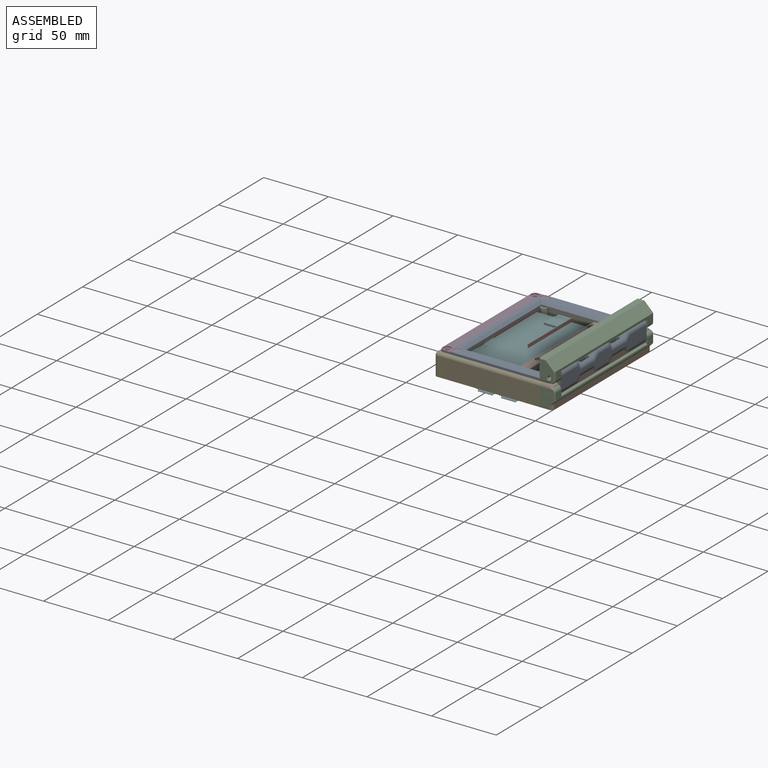
[diagram: assembled view]
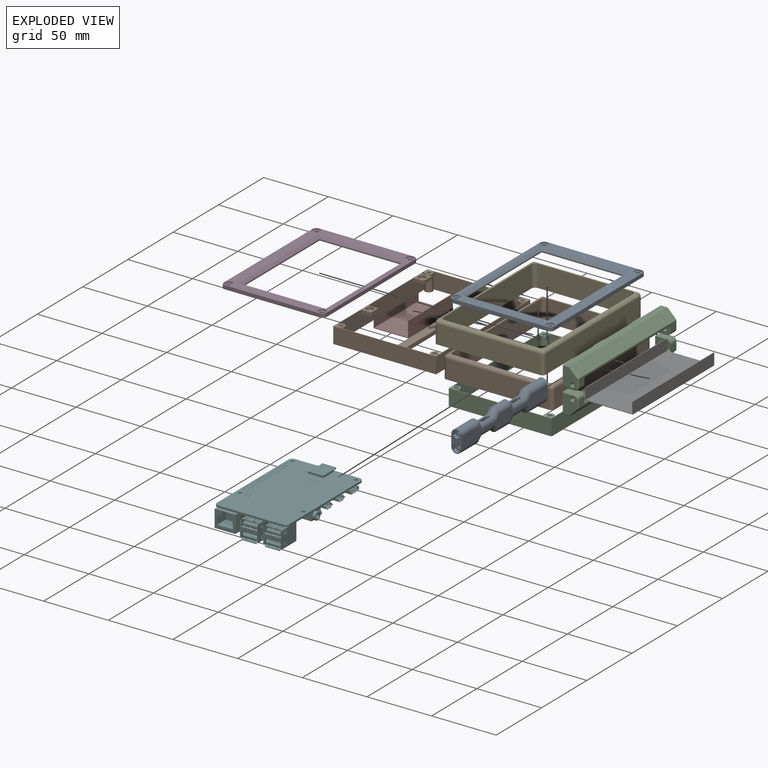
[diagram: exploded view]
GUIDED TOUR — FREECAD ASSEMBLY "hing-test"

This assembly has 11 components, labeled P0..P10 below (a component is one placed body or linked part; the same part can appear more than once), held together by 0 modeled joints plus 30 derived contact edges. A joint is a constraint between two components; its type names the relative motion it leaves free:
  CONTACT — a derived adjacency edge — the two components touch in the source model (clearance under 2% of the assembly's diagonal); it is measured from the geometry, not a modeled constraint.
Axis/direction vectors are unit vectors and 'through' points are millimeter coordinates, both in the assembly's world frame.

MATES
  1. CONTACT "contact_0_2": P0 <-> P2, contact direction (-0.975, 0.149, -0.163) through (40.27, -40.88, -0.14) mm (derived from contact, not a modeled constraint)
  2. CONTACT "contact_0_6": P0 <-> P6, contact direction (-0.975, 0.149, -0.163) through (43.36, -38.46, 0.06) mm (derived from contact, not a modeled constraint)
  3. CONTACT "contact_0_8": P0 <-> P8, contact direction (-1.000, 0.000, 0.000) through (44.40, -41.80, 3.13) mm (derived from contact, not a modeled constraint)
  4. CONTACT "contact_0_9": P0 <-> P9, contact direction (0.000, 1.000, 0.000) through (44.17, -41.51, 3.65) mm (derived from contact, not a modeled constraint)
  5. CONTACT "contact_0_10": P0 <-> P10, contact direction (1.000, 0.000, 0.000) through (48.67, 53.98, 0.15) mm (derived from contact, not a modeled constraint)
  6. CONTACT "contact_1_2": P1 <-> P2, contact direction (0.975, -0.149, 0.163) through (-35.00, -41.98, 0.00) mm (derived from contact, not a modeled constraint)
  7. CONTACT "contact_1_4": P1 <-> P4, contact direction (0.000, 0.000, 1.000) through (-41.50, -42.00, -12.50) mm (derived from contact, not a modeled constraint)
  8. CONTACT "contact_1_5": P1 <-> P5, contact direction (-0.130, -0.984, -0.125) through (-36.60, 47.28, -2.58) mm (derived from contact, not a modeled constraint)
  9. CONTACT "contact_1_6": P1 <-> P6, contact direction (1.000, 0.000, 0.000) through (8.46, 50.48, 0.00) mm (derived from contact, not a modeled constraint)
  10. CONTACT "contact_1_7": P1 <-> P7, contact direction (-0.975, 0.149, -0.163) through (-33.92, 51.60, 0.00) mm (derived from contact, not a modeled constraint)
  11. CONTACT "contact_1_9": P1 <-> P9, contact direction (1.000, 0.000, 0.000) through (-37.56, -45.18, -12.50) mm (derived from contact, not a modeled constraint)
  12. CONTACT "contact_1_10": P1 <-> P10, contact direction (0.975, -0.149, 0.163) through (37.25, 59.24, -12.71) mm (derived from contact, not a modeled constraint)
  13. CONTACT "contact_2_4": P2 <-> P4, contact direction (-0.179, -0.101, 0.979) through (40.06, 58.18, -12.50) mm (derived from contact, not a modeled constraint)
  14. CONTACT "contact_2_6": P2 <-> P6, contact direction (1.000, 0.000, 0.000) through (43.19, -39.28, 0.00) mm (derived from contact, not a modeled constraint)
  15. CONTACT "contact_2_7": P2 <-> P7, contact direction (0.000, 0.000, 1.000) through (-33.68, 52.34, 0.00) mm (derived from contact, not a modeled constraint)
  16. CONTACT "contact_2_9": P2 <-> P9, contact direction (0.000, 0.000, 1.000) through (41.00, -45.00, -12.50) mm (derived from contact, not a modeled constraint)
  17. CONTACT "contact_2_10": P2 <-> P10, contact direction (0.975, -0.149, 0.163) through (43.59, 53.91, 0.19) mm (derived from contact, not a modeled constraint)
  18. CONTACT "contact_3_4": P3 <-> P4, contact direction (0.000, 0.000, -1.000) through (37.08, -42.01, 4.86) mm (derived from contact, not a modeled constraint)
  19. CONTACT "contact_3_8": P3 <-> P8, contact direction (1.000, 0.000, 0.000) through (-35.18, 55.20, 6.25) mm (derived from contact, not a modeled constraint)
  20. CONTACT "contact_3_9": P3 <-> P9, contact direction (1.000, 0.000, 0.000) through (-34.91, -42.01, 4.86) mm (derived from contact, not a modeled constraint)
  21. CONTACT "contact_3_10": P3 <-> P10, contact direction (1.000, 0.000, 0.000) through (36.44, 59.11, 6.02) mm (derived from contact, not a modeled constraint)
  22. CONTACT "contact_4_8": P4 <-> P8, contact direction (0.975, -0.149, 0.163) through (37.37, -42.01, 4.98) mm (derived from contact, not a modeled constraint)
  23. CONTACT "contact_4_9": P4 <-> P9, contact direction (0.000, 0.000, 1.000) through (-38.00, 58.25, -12.50) mm (derived from contact, not a modeled constraint)
  24. CONTACT "contact_4_10": P4 <-> P10, contact direction (0.000, 0.000, 1.000) through (37.25, 60.99, 2.13) mm (derived from contact, not a modeled constraint)
  25. CONTACT "contact_5_7": P5 <-> P7, contact direction (-1.000, 0.000, 0.000) through (-8.09, 52.27, -0.58) mm (derived from contact, not a modeled constraint)
  26. CONTACT "contact_6_10": P6 <-> P10, contact direction (0.000, 1.000, 0.000) through (43.35, -39.96, 0.03) mm (derived from contact, not a modeled constraint)
  27. CONTACT "contact_7_9": P7 <-> P9, contact direction (0.975, -0.149, 0.163) through (-34.49, 53.50, -12.50) mm (derived from contact, not a modeled constraint)
  28. CONTACT "contact_8_9": P8 <-> P9, contact direction (0.000, 0.000, -1.000) through (42.58, 57.68, 4.98) mm (derived from contact, not a modeled constraint)
  29. CONTACT "contact_8_10": P8 <-> P10, contact direction (1.000, 0.000, 0.000) through (44.30, 54.49, 7.38) mm (derived from contact, not a modeled constraint)
  30. CONTACT "contact_9_10": P9 <-> P10, contact direction (1.000, 0.000, 0.000) through (46.00, 60.25, 3.02) mm (derived from contact, not a modeled constraint)

ASSEMBLY ORDER
  1. P9 — the base component [order heuristic]
  2. P0 [order heuristic]
  3. P1 [order heuristic]
  4. P2 [order heuristic]
  5. P3 [order heuristic]
  6. P4 [order heuristic]
  7. P7 [order heuristic]
  8. P8 [order heuristic]
  9. P10 [order heuristic]
  10. P5 [order heuristic]
  11. P6 [order heuristic]
Order-tag legend:
  [order heuristic] — this assembly is geometrically interlocked (no collision-free removal order exists), so components are listed in mate-graph order; insertion feasibility is not verified.

Of the 11 components, 10 carry a construction recipe — the FreeCAD feature program (sketches with constraints, then the solid features that consume them) that regenerates the part from scratch, quoted from this document or from the linked companion document it references; the rest are supplied as boundary geometry only. The tour below walks the components in assembly order: each is shown spotlighted twice — in the assembled view, then in the exploded view, where a leader line traces a displaced component back to its assembled socket (components that stay in place when exploded have no leader line; saturated green if recipe-attached, orange if geometry-only; every other component desaturated gray) — followed by its recipe or geometry summary and the mates that hold it.
NOTE — this tour is split across 2 documents so each fits a 32k-token context. This is document 1: the component sections continue in the remaining 1 document, each repeating the header above.
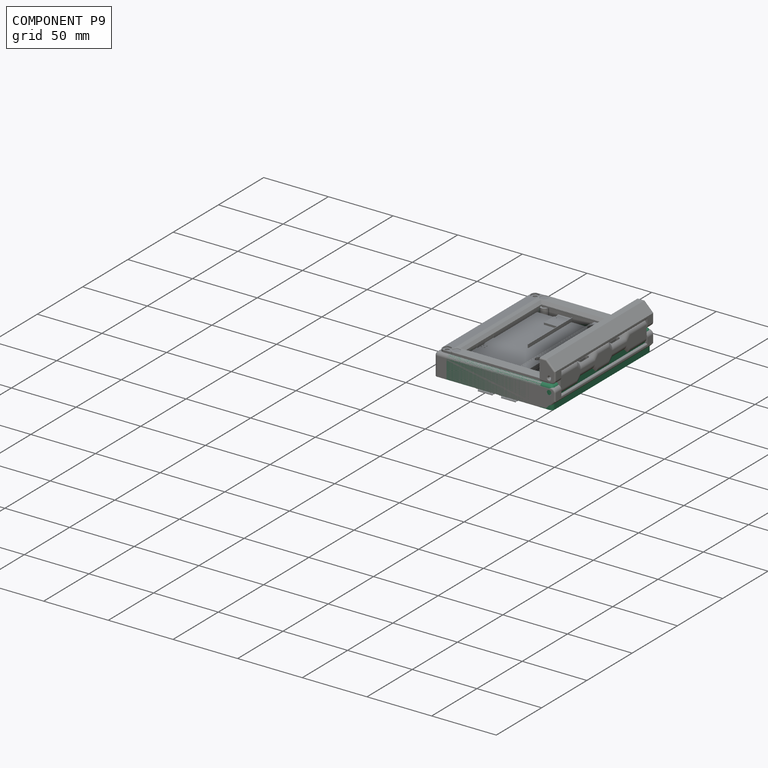
[diagram: component P9 — assembled]
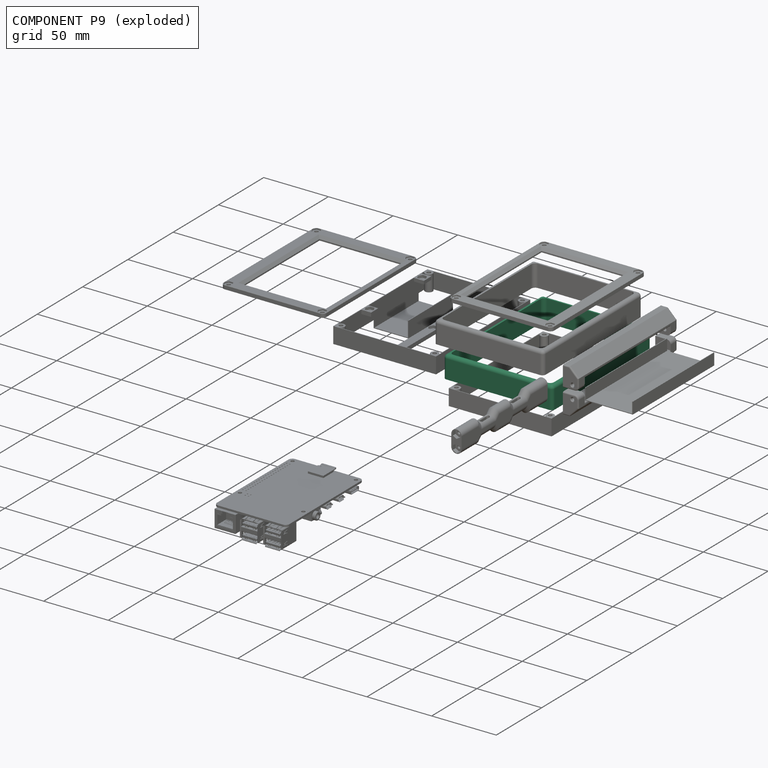
[diagram: component P9 — exploded]
COMPONENT P9 — recipe-attached ("outer-shell001", modeled in this document).
Held by: resting contact with P0 (derived edge); resting contact with P1 (derived edge); resting contact with P2 (derived edge); resting contact with P3 (derived edge); resting contact with P4 (derived edge); resting contact with P7 (derived edge); resting contact with P8 (derived edge); resting contact with P10 (derived edge).
Construction recipe (the document's own serialized feature program — sketch geometry with constraints, then the solid features built on it; lengths are millimeters unless a unit is written):

FEATURE [Sketcher::SketchObject] Sketch048
  FullyConstrained = true
  MapMode = 5
  Support = -> [XY_Plane050]
  sketch-geometry (8):
    g0: LineSegment StartX=-34.5 StartY=58 StartZ=0 EndX=44 EndY=58 EndZ=0
    g1: LineSegment StartX=44 StartY=58 StartZ=0 EndX=44 EndY=-45 EndZ=0
    g2: LineSegment StartX=44 StartY=-45 StartZ=0 EndX=-34.5 EndY=-45 EndZ=0
    g3: LineSegment StartX=-34.5 StartY=-45 StartZ=0 EndX=-34.5 EndY=58 EndZ=0
    g4: LineSegment StartX=-37.5 StartY=61 StartZ=0 EndX=47 EndY=61 EndZ=0
    g5: LineSegment StartX=47 StartY=61 StartZ=0 EndX=47 EndY=-48 EndZ=0
    g6: LineSegment StartX=47 StartY=-48 StartZ=0 EndX=-37.5 EndY=-48 EndZ=0
    g7: LineSegment StartX=-37.5 StartY=-48 StartZ=0 EndX=-37.5 EndY=61 EndZ=0
  constraints (24):
    c: Coincident(g0,g1)
    c: Coincident(g1,g2)
    c: Coincident(g2,g3)
    c: Coincident(g3,g0)
    c: Horizontal(g0)
    c: Horizontal(g2)
    c: Vertical(g1)
    c: Vertical(g3)
    c: Coincident(g4,g5)
    c: Coincident(g5,g6)
    c: Coincident(g6,g7)
    c: Coincident(g7,g4)
    c: Horizontal(g4)
    c: Horizontal(g6)
    c: Vertical(g5)
    c: Vertical(g7)
    c: DistanceX(g0,g0) = 78.5
    c: DistanceY(g3,g3) = 103
    c: DistanceY(g1,g-1) = 45
    c: DistanceX(g-1,g1) = 44
    c: DistanceY(g0,g4) = 3
    c: DistanceX(g4,g0) = 3
    c: DistanceX(g0,g4) = 3
    c: DistanceY(g5,g1) = 3
FEATURE [PartDesign::Pad] Pad011
  Direction = (0,0,1)
  Length = 17
  Length2 = 10
  Profile = -> Sketch048
  ReferenceAxis = -> Sketch048 [N_Axis]
  Reversed = true
  Type = 0
FEATURE [PartDesign::Fillet] Fillet021  label="Fillet022"
  Base = -> Pad011 [Edge13,Edge20,Edge14,Edge17]
  BaseFeature = -> Pad011
  Radius = 3
  SupportTransform = false
  UseAllEdges = false
FEATURE [PartDesign::Fillet] Fillet023  label="Fillet024"
  Base = -> Fillet021 [Edge34,Edge33,Edge35,Edge36,Edge15,Edge14,Edge13,Edge12]
  BaseFeature = -> Fillet021
  Radius = 2.5
  SupportTransform = false
  UseAllEdges = false
FEATURE [PartDesign::Body] Body010  label="Body016"
  Group = -> [Sketch048,Pad011,Fillet021,Fillet023]
  Origin = -> Origin050
  Placement = pos=(0,0,4.5) rot=(0,0,1;0rad)
  Tip = -> Fillet023
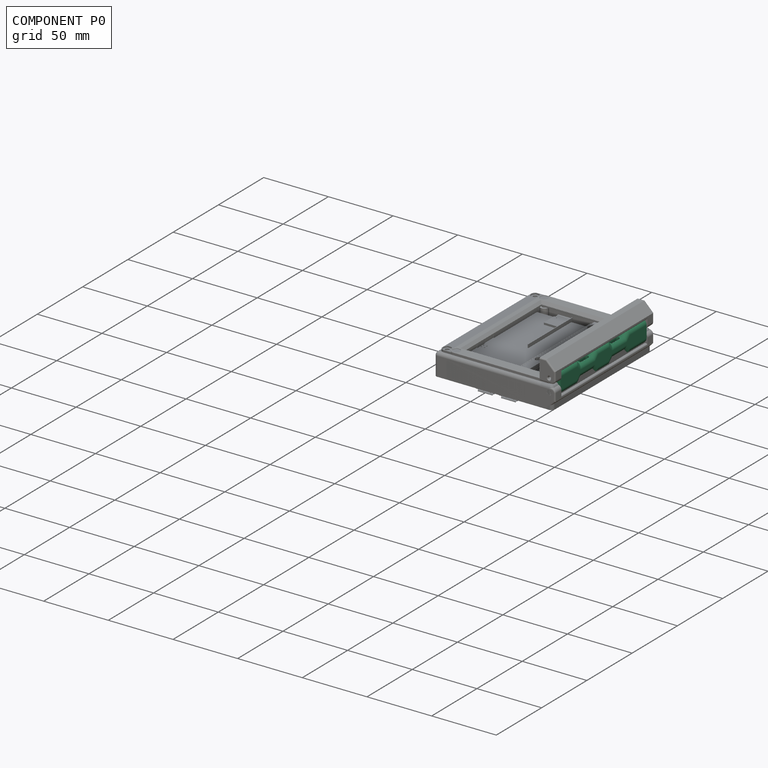
[diagram: component P0 — assembled]
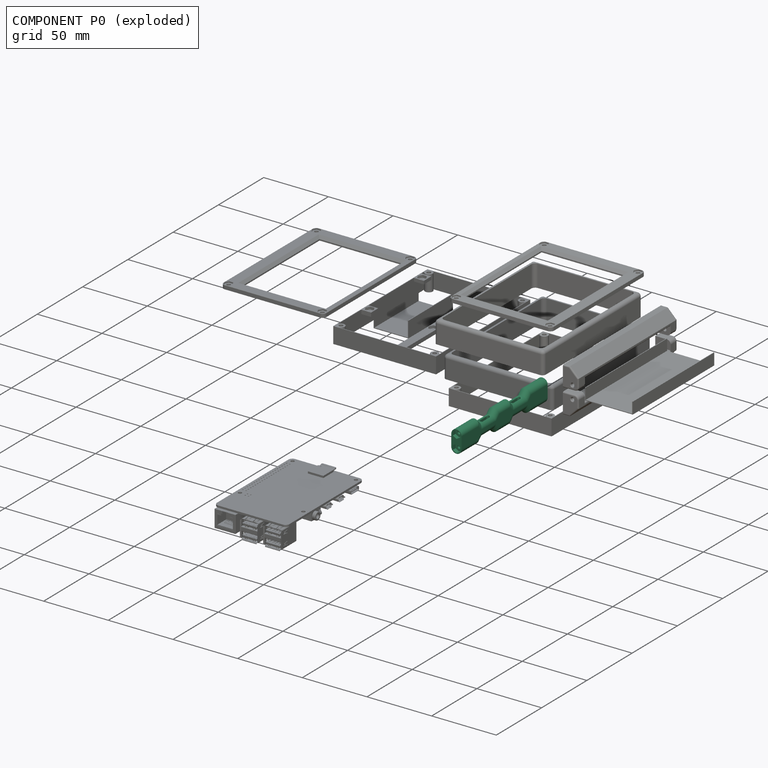
[diagram: component P0 — exploded]
COMPONENT P0 — recipe-attached ("new-hinge", modeled in this document).
Held by: resting contact with P2 (derived edge); resting contact with P6 (derived edge); resting contact with P8 (derived edge); resting contact with P9 (derived edge); resting contact with P10 (derived edge).
Construction recipe (the document's own serialized feature program — sketch geometry with constraints, then the solid features built on it; lengths are millimeters unless a unit is written):

FEATURE [Sketcher::SketchObject] Sketch
  FullyConstrained = false
  MapMode = 5
  Support = -> [XY_Plane001]
  sketch-geometry (20):
    g0: LineSegment StartX=107.885 StartY=47.5 StartZ=0 EndX=107.885 EndY=27.5 EndZ=0
    g1: LineSegment StartX=107.885 StartY=27.5 StartZ=0 EndX=111.385 EndY=24 EndZ=0
    g2: LineSegment StartX=111.385 StartY=24 StartZ=0 EndX=111.385 EndY=11 EndZ=0
    g3: LineSegment StartX=111.385 StartY=11 StartZ=0 EndX=107.885 EndY=7.5 EndZ=0
    g4: LineSegment StartX=107.885 StartY=7.5 StartZ=0 EndX=107.885 EndY=-7.5 EndZ=0
    g5: LineSegment StartX=107.885 StartY=-7.5 StartZ=0 EndX=111.385 EndY=-11 EndZ=0
    g6: LineSegment StartX=111.385 StartY=-11 StartZ=0 EndX=111.385 EndY=-24 EndZ=0
    g7: LineSegment StartX=111.385 StartY=-24 StartZ=0 EndX=107.885 EndY=-27.5 EndZ=0
    g8: LineSegment StartX=107.885 StartY=-27.5 StartZ=0 EndX=107.885 EndY=-47.5 EndZ=0
    g9: LineSegment StartX=107.885 StartY=-47.5 StartZ=0 EndX=124.885 EndY=-47.5 EndZ=0
    g10: LineSegment StartX=124.885 StartY=-47.5 StartZ=0 EndX=124.885 EndY=-27.5 EndZ=0
    g11: LineSegment StartX=124.885 StartY=-27.5 StartZ=0 EndX=121.385 EndY=-24 EndZ=0
    g12: LineSegment StartX=121.385 StartY=-24 StartZ=0 EndX=121.385 EndY=-11 EndZ=0
    g13: LineSegment StartX=121.385 StartY=-11 StartZ=0 EndX=124.885 EndY=-7.5 EndZ=0
    g14: LineSegment StartX=124.885 StartY=-7.5 StartZ=0 EndX=124.885 EndY=7.5 EndZ=0
    g15: LineSegment StartX=124.885 StartY=7.5 StartZ=0 EndX=121.385 EndY=11 EndZ=0
    g16: LineSegment StartX=121.385 StartY=11 StartZ=0 EndX=121.385 EndY=24 EndZ=0
    g17: LineSegment StartX=121.385 StartY=24 StartZ=0 EndX=124.885 EndY=27.5 EndZ=0
    g18: LineSegment StartX=124.885 StartY=27.5 StartZ=0 EndX=124.885 EndY=47.5 EndZ=0
    g19: LineSegment StartX=124.885 StartY=47.5 StartZ=0 EndX=107.885 EndY=47.5 EndZ=0
  constraints (59):
    c: Vertical(g0)
    c: Coincident(g0,g1)
    c: Coincident(g1,g2)
    c: Vertical(g2)
    c: Coincident(g2,g3)
    c: Coincident(g3,g4)
    c: Vertical(g4)
    c: Coincident(g4,g5)
    c: Coincident(g5,g6)
    c: Vertical(g6)
    c: Coincident(g6,g7)
    c: Coincident(g7,g8)
    c: Vertical(g8)
    c: Coincident(g8,g9)
    c: Horizontal(g9)
    c: Coincident(g9,g10)
    c: Vertical(g10)
    c: Coincident(g10,g11)
    c: Coincident(g11,g12)
    c: Vertical(g12)
    c: Coincident(g12,g13)
    c: Coincident(g13,g14)
    c: Vertical(g14)
    c: Coincident(g14,g15)
    c: Coincident(g15,g16)
    c: Vertical(g16)
    c: Coincident(g16,g17)
    c: Coincident(g17,g18)
    c: Vertical(g18)
    c: Coincident(g18,g19)
    c: Coincident(g19,g0)
    c: Horizontal(g19)
    c: Equal(g4,g14)
    c: Equal(g19,g9)
    c: Equal(g0,g18)
    c: Equal(g18,g8)
    c: Equal(g8,g10)
    c: Equal(g2,g16)
    c: Equal(g16,g12)
    c: Equal(g12,g6)
    c: Horizontal(g1,g16)
    c: Horizontal(g3,g14)
    c: Horizontal(g5,g12)
    c: Angle(g1,g2) = 2.35619
    c: Angle(g2,g3) = 2.35619
    c: Angle(g16,g17) = 2.35619
    c: Angle(g15) = 2.35619
    c: Angle(g12,g13) = 2.35619
    c: Angle(g11,g12) = 2.35619
    c: Angle(g5,g6) = 2.35619
    c: Angle(g6,g7) = 2.35619
    c: Equal(g1,g3)
    c: DistanceY(g-1,g3) = 7.5
    c: DistanceY(g4,g-1) = 7.5
    c: DistanceY(g0,g0) = 20
    c: DistanceX(g1,g16) = 10
    c: DistanceX(g5,g12) = 10
    c: DistanceY(g3,g0) = 20
    c: DistanceX(g3,g14) = 17
FEATURE [PartDesign::Pad] Pad
  Direction = (0,0,1)
  Length = 8
  Length2 = 10
  Profile = -> Sketch
  ReferenceAxis = -> Sketch [N_Axis]
  Type = 0
FEATURE [PartDesign::Fillet] Fillet
  Base = -> Pad [Edge46,Edge43,Edge40,Edge37,Edge34,Edge28,Edge25,Edge22,Edge19,Edge16,Edge13,Edge10,Edge7,Edge4,Edge58,Edge52,Edge55,Edge51,Edge54,Edge57,Edge3,Edge49,Edge48,Edge45,Edge42,Edge39,Edge36,Edge33,Edge27,Edge24,Edge21,Edge18,Edge15,Edge12,Edge9,Edge6]
  BaseFeature = -> Pad
  Radius = 3.99
  SupportTransform = false
  UseAllEdges = false
FEATURE [Sketcher::SketchObject] Sketch002
  AttachmentOffset = pos=(116.5,0,47.5) rot=(0,0,1;0rad)
  FullyConstrained = true
  MapMode = 5
  Placement = pos=(116.5,-47.5,-1.05e-14) rot=(1,0,0;1.5708rad)
  Support = -> [XZ_Plane001]
  sketch-geometry (14):
    g0: LineSegment StartX=-3.375 StartY=6.81458 StartZ=0 EndX=-6.625 EndY=6.81458 EndZ=0
    g1: LineSegment StartX=-6.625 StartY=6.81458 StartZ=0 EndX=-8.25 EndY=4 EndZ=0
    g2: LineSegment StartX=-8.25 StartY=4 StartZ=0 EndX=-6.625 EndY=1.18542 EndZ=0
    g3: LineSegment StartX=-6.625 StartY=1.18542 StartZ=0 EndX=-3.375 EndY=1.18542 EndZ=0
    g4: LineSegment StartX=-3.375 StartY=1.18542 StartZ=0 EndX=-1.75 EndY=4 EndZ=0
    g5: LineSegment StartX=-1.75 StartY=4 StartZ=0 EndX=-3.375 EndY=6.81458 EndZ=0
    g6: Circle CenterX=-5 CenterY=4 CenterZ=0 NormalX=0 NormalY=0 NormalZ=1 AngleXU=0 Radius=3.25
    g7: LineSegment StartX=3.375 StartY=6.81458 StartZ=0 EndX=1.75 EndY=4 EndZ=0
    g8: LineSegment StartX=1.75 StartY=4 StartZ=0 EndX=3.375 EndY=1.18542 EndZ=0
    g9: LineSegment StartX=3.375 StartY=1.18542 StartZ=0 EndX=6.625 EndY=1.18542 EndZ=0
    g10: LineSegment StartX=6.625 StartY=1.18542 StartZ=0 EndX=8.25 EndY=4 EndZ=0
    g11: LineSegment StartX=8.25 StartY=4 StartZ=0 EndX=6.625 EndY=6.81458 EndZ=0
    g12: LineSegment StartX=6.625 StartY=6.81458 StartZ=0 EndX=3.375 EndY=6.81458 EndZ=0
    g13: Circle CenterX=5 CenterY=4 CenterZ=0 NormalX=0 NormalY=0 NormalZ=1 AngleXU=0 Radius=3.25
  constraints (34):
    c: Coincident(g0,g1)
    c: Coincident(g1,g2)
    c: Coincident(g2,g3)
    c: Coincident(g3,g4)
    c: Coincident(g4,g5)
    c: Coincident(g5,g0)
    c: Equal(g0, g1-g5) x5
    c: PointOnObject(g0,g6)
    c: PointOnObject(g1,g6)
    c: PointOnObject(g2,g6)
    c: PointOnObject(g3,g6)
    c: PointOnObject(g4,g6)
    c: PointOnObject(g5,g6)
    c: Coincident(g7,g8)
    c: Coincident(g8,g9)
    c: Coincident(g9,g10)
    c: Coincident(g10,g11)
    c: Coincident(g11,g12)
    c: Coincident(g12,g7)
    c: Equal(g7, g8-g12) x5
    c: PointOnObject(g7,g13)
    c: PointOnObject(g8,g13)
    c: PointOnObject(g9,g13)
    c: PointOnObject(g10,g13)
    c: PointOnObject(g11,g13)
    c: PointOnObject(g12,g13)
    c: Equal(g6,g13)
    c: Horizontal(g12)
    c: Diameter(g6) = 6.5
    c: Horizontal(g6,g13)
    c: DistanceY(g-1,g13) = 4
    c: DistanceX(g-1,g13) = 5
    c: DistanceX(g6,g-1) = 5
    c: Horizontal(g0)
FEATURE [Sketcher::SketchObject] Sketch003
  AttachmentOffset = pos=(116.5,0,-47.5) rot=(0,0,1;0rad)
  FullyConstrained = true
  MapMode = 5
  Placement = pos=(116.5,47.5,1.05e-14) rot=(1,0,0;1.5708rad)
  Support = -> [XZ_Plane001]
  sketch-geometry (14):
    g0: LineSegment StartX=-3.375 StartY=6.81458 StartZ=0 EndX=-6.625 EndY=6.81458 EndZ=0
    g1: LineSegment StartX=-6.625 StartY=6.81458 StartZ=0 EndX=-8.25 EndY=4 EndZ=0
    g2: LineSegment StartX=-8.25 StartY=4 StartZ=0 EndX=-6.625 EndY=1.18542 EndZ=0
    g3: LineSegment StartX=-6.625 StartY=1.18542 StartZ=0 EndX=-3.375 EndY=1.18542 EndZ=0
    g4: LineSegment StartX=-3.375 StartY=1.18542 StartZ=0 EndX=-1.75 EndY=4 EndZ=0
    g5: LineSegment StartX=-1.75 StartY=4 StartZ=0 EndX=-3.375 EndY=6.81458 EndZ=0
    g6: Circle CenterX=-5 CenterY=4 CenterZ=0 NormalX=0 NormalY=0 NormalZ=1 AngleXU=0 Radius=3.25
    g7: LineSegment StartX=3.375 StartY=6.81458 StartZ=0 EndX=1.75 EndY=4 EndZ=0
    g8: LineSegment StartX=1.75 StartY=4 StartZ=0 EndX=3.375 EndY=1.18542 EndZ=0
    g9: LineSegment StartX=3.375 StartY=1.18542 StartZ=0 EndX=6.625 EndY=1.18542 EndZ=0
    g10: LineSegment StartX=6.625 StartY=1.18542 StartZ=0 EndX=8.25 EndY=4 EndZ=0
    g11: LineSegment StartX=8.25 StartY=4 StartZ=0 EndX=6.625 EndY=6.81458 EndZ=0
    g12: LineSegment StartX=6.625 StartY=6.81458 StartZ=0 EndX=3.375 EndY=6.81458 EndZ=0
    g13: Circle CenterX=5 CenterY=4 CenterZ=0 NormalX=0 NormalY=0 NormalZ=1 AngleXU=0 Radius=3.25
  constraints (34):
    c: Coincident(g0,g1)
    c: Coincident(g1,g2)
    c: Coincident(g2,g3)
    c: Coincident(g3,g4)
    c: Coincident(g4,g5)
    c: Coincident(g5,g0)
    c: Equal(g0, g1-g5) x5
    c: PointOnObject(g0,g6)
    c: PointOnObject(g1,g6)
    c: PointOnObject(g2,g6)
    c: PointOnObject(g3,g6)
    c: PointOnObject(g4,g6)
    c: PointOnObject(g5,g6)
    c: Coincident(g7,g8)
    c: Coincident(g8,g9)
    c: Coincident(g9,g10)
    c: Coincident(g10,g11)
    c: Coincident(g11,g12)
    c: Coincident(g12,g7)
    c: Equal(g7, g8-g12) x5
    c: PointOnObject(g7,g13)
    c: PointOnObject(g8,g13)
    c: PointOnObject(g9,g13)
    c: PointOnObject(g10,g13)
    c: PointOnObject(g11,g13)
    c: PointOnObject(g12,g13)
    c: Equal(g6,g13)
    c: Horizontal(g12)
    c: Diameter(g6) = 6.5
    c: Horizontal(g6,g13)
    c: DistanceY(g-1,g13) = 4
    c: DistanceX(g-1,g13) = 5
    c: DistanceX(g6,g-1) = 5
    c: Horizontal(g0)
FEATURE [Sketcher::SketchObject] Sketch004
  AttachmentOffset = pos=(116.5,0,-42.5) rot=(0,0,1;0rad)
  FullyConstrained = true
  MapMode = 5
  Placement = pos=(116.5,42.5,9.4e-15) rot=(1,0,0;1.5708rad)
  Support = -> [XZ_Plane001]
  sketch-geometry (2):
    g0: Circle CenterX=-5 CenterY=4 CenterZ=0 NormalX=0 NormalY=0 NormalZ=1 AngleXU=0 Radius=1.25
    g1: Circle CenterX=5 CenterY=4 CenterZ=0 NormalX=0 NormalY=0 NormalZ=1 AngleXU=0 Radius=1.25
  constraints (6):
    c: Equal(g0,g1)
    c: Diameter(g0) = 2.5
    c: Horizontal(g0,g1)
    c: DistanceX(g0,g1) = 10
    c: DistanceY(g-1,g0) = 4
    c: DistanceX(g0,g-1) = 5
FEATURE [Sketcher::SketchObject] Sketch001
  FullyConstrained = true
  MapMode = 5
  Placement = pos=(0,0,0) rot=(0.57735,0.57735,0.57735;2.0944rad)
  Support = -> [YZ_Plane001]
  sketch-geometry (8):
    g0: ArcOfCircle CenterX=-21 CenterY=4 CenterZ=0 NormalX=0 NormalY=0 NormalZ=1 AngleXU=0 Radius=1.25 StartAngle=1.5708 EndAngle=4.71239
    g1: ArcOfCircle CenterX=-13 CenterY=4 CenterZ=0 NormalX=0 NormalY=0 NormalZ=1 AngleXU=0 Radius=1.25 StartAngle=4.71239 EndAngle=7.85398
    g2: LineSegment StartX=-21 StartY=2.75 StartZ=0 EndX=-13 EndY=2.75 EndZ=0
    g3: LineSegment StartX=-13 StartY=5.25 StartZ=0 EndX=-21 EndY=5.25 EndZ=0
    g4: ArcOfCircle CenterX=13 CenterY=4 CenterZ=0 NormalX=0 NormalY=0 NormalZ=1 AngleXU=0 Radius=1.25 StartAngle=1.5708 EndAngle=4.71239
    g5: ArcOfCircle CenterX=21 CenterY=4 CenterZ=0 NormalX=0 NormalY=0 NormalZ=1 AngleXU=0 Radius=1.25 StartAngle=4.71239 EndAngle=7.85398
    g6: LineSegment StartX=13 StartY=2.75 StartZ=0 EndX=21 EndY=2.75 EndZ=0
    g7: LineSegment StartX=21 StartY=5.25 StartZ=0 EndX=13 EndY=5.25 EndZ=0
  constraints (20):
    c: Tangent(g0,g2) = -1.5708
    c: Tangent(g2,g1) = -1.5708
    c: Tangent(g1,g3) = -1.5708
    c: Tangent(g3,g0) = -1.5708
    c: Equal(g0,g1)
    c: Tangent(g4,g6) = -1.5708
    c: Tangent(g6,g5) = -1.5708
    c: Tangent(g5,g7) = -1.5708
    c: Tangent(g7,g4) = -1.5708
    c: Equal(g4,g5)
    c: Equal(g4,g0)
    c: Horizontal(g0,g1)
    c: Horizontal(g4,g5)
    c: Horizontal(g4,g1)
    c: Equal(g7,g3)
    c: DistanceY(g-1,g1) = 4
    c: DistanceY(g0,g0) = 2.5
    c: DistanceX(g3,g3) = 8
    c: DistanceX(g1,g-1) = 13
    c: DistanceX(g-1,g4) = 13
FEATURE [PartDesign::Pocket] Pocket
  BaseFeature = -> Fillet
  Direction = (-1,2e-16,-3e-16)
  Length = 5
  Length2 = 5
  Midplane = true
  Profile = -> Sketch001
  ReferenceAxis = -> Sketch001 [N_Axis]
  Type = 1
FEATURE [PartDesign::Fillet] Fillet001
  Base = -> Pocket [Edge133,Edge134,Edge126,Edge127,Edge128,Edge132,Edge155,Edge150,Edge149,Edge156,Edge154,Edge151,Edge91,Edge92,Edge93,Edge113,Edge114,Edge115,Edge86,Edge85,Edge87,Edge109,Edge110,Edge108]
  BaseFeature = -> Pocket
  Radius = 0.7
  SupportTransform = false
  UseAllEdges = false
FEATURE [PartDesign::Pocket] Pocket001
  BaseFeature = -> Fillet001
  Direction = (0,1,2e-16)
  Length = 3
  Length2 = 5
  Profile = -> Sketch002
  ReferenceAxis = -> Sketch002 [N_Axis]
  Type = 0
FEATURE [PartDesign::Pocket] Pocket002
  BaseFeature = -> Pocket001
  Direction = (0,1,2e-16)
  Length = 5
  Length2 = 5
  Profile = -> Sketch003
  ReferenceAxis = -> Sketch003 [N_Axis]
  Reversed = true
  Type = 0
FEATURE [PartDesign::Pocket] Pocket003
  BaseFeature = -> Pocket002
  Direction = (0,1,2e-16)
  Length = 5
  Length2 = 5
  Profile = -> Sketch004
  ReferenceAxis = -> Sketch004 [N_Axis]
  Reversed = true
  Type = 0
FEATURE [Sketcher::SketchObject] Sketch005
  AttachmentOffset = pos=(116.5,-44.5,0) rot=(1,0,0;1.5708rad)
  FullyConstrained = true
  MapMode = 2
  Placement = pos=(116.5,-44.5,0) rot=(1,0,0;1.5708rad)
  Support = -> [Pocket003]
  sketch-geometry (2):
    g0: Circle CenterX=-5 CenterY=4 CenterZ=0 NormalX=0 NormalY=0 NormalZ=1 AngleXU=0 Radius=1.25
    g1: Circle CenterX=5 CenterY=4 CenterZ=0 NormalX=0 NormalY=0 NormalZ=1 AngleXU=0 Radius=1.25
  constraints (6):
    c: Equal(g0,g1)
    c: Diameter(g0) = 2.5
    c: Horizontal(g0,g1)
    c: DistanceX(g0,g1) = 10
    c: DistanceY(g-1,g0) = 4
    c: DistanceX(g0,g-1) = 5
FEATURE [PartDesign::Pocket] Pocket004
  BaseFeature = -> Pocket003
  Direction = (0,1,-2e-16)
  Length = 5
  Length2 = 5
  Profile = -> Sketch005
  ReferenceAxis = -> Sketch005 [N_Axis]
  Type = 0
FEATURE [PartDesign::Body] Body  label="spine"
  Group = -> [Sketch,Pad,Fillet,Sketch001,Pocket,Fillet001,Sketch002,Pocket001,Sketch003,Pocket002,Sketch004,Pocket003,Sketch005,Pocket004]
  Origin = -> Origin001
  Tip = -> Pocket004
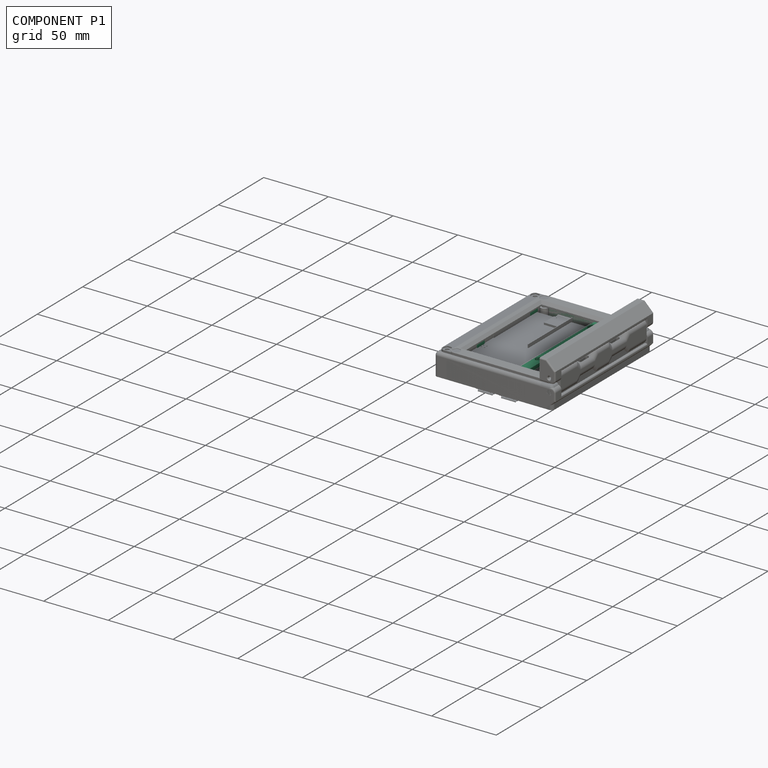
[diagram: component P1 — assembled]
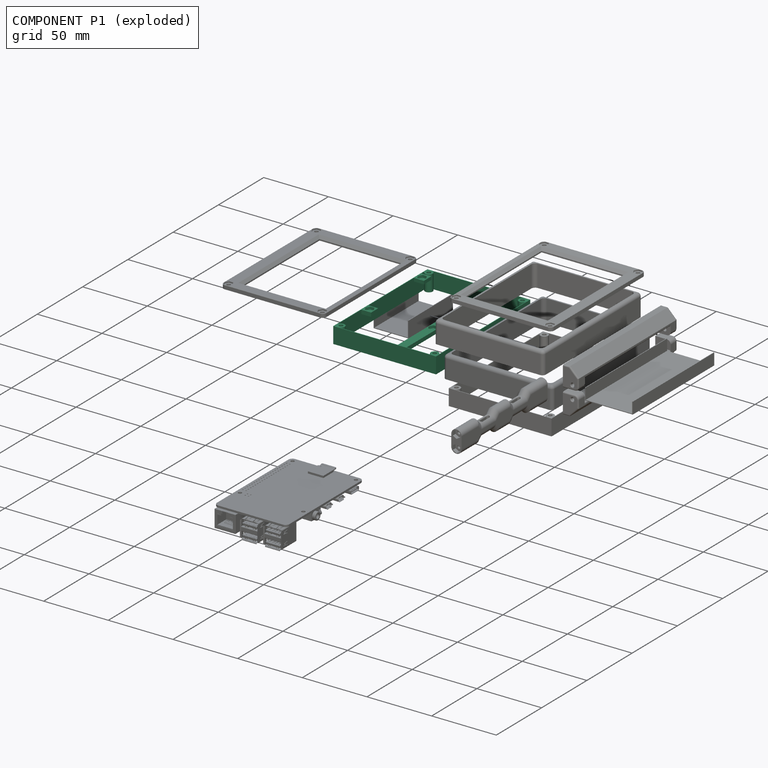
[diagram: component P1 — exploded]
COMPONENT P1 — recipe-attached ("epaper module tray", modeled in this document).
Held by: resting contact with P2 (derived edge); resting contact with P4 (derived edge); resting contact with P5 (derived edge); resting contact with P6 (derived edge); resting contact with P7 (derived edge); resting contact with P9 (derived edge); resting contact with P10 (derived edge).
Construction recipe (the document's own serialized feature program — sketch geometry with constraints, then the solid features built on it; lengths are millimeters unless a unit is written):

FEATURE [Sketcher::SketchObject] Sketch006
  FullyConstrained = false
  MapMode = 5
  Support = -> [XY_Plane005]
  sketch-geometry (5):
    g0: LineSegment StartX=-33.867 StartY=51.1954 StartZ=0 EndX=-33.867 EndY=42.9605 EndZ=0
    g1: LineSegment StartX=-33.867 StartY=51.1954 StartZ=0 EndX=-41.8883 EndY=51.1954 EndZ=0
    g2: LineSegment StartX=-33.867 StartY=42.9605 StartZ=0 EndX=-41.8883 EndY=42.9605 EndZ=0
    g3: LineSegment StartX=-41.8883 StartY=51.1954 StartZ=0 EndX=-41.8883 EndY=42.9605 EndZ=0
    g4: Circle CenterX=-37.9976 CenterY=47.0105 CenterZ=0 NormalX=0 NormalY=0 NormalZ=1 AngleXU=0 Radius=1.5
  constraints (9):
    c: Vertical(g0)
    c: Coincident(g1,g0)
    c: Horizontal(g1)
    c: Coincident(g2,g0)
    c: Horizontal(g2)
    c: Coincident(g3,g1)
    c: Vertical(g3)
    c: Coincident(g3,g2)
    c: Diameter(g4) = 3
FEATURE [Sketcher::SketchObject] Sketch007
  FullyConstrained = false
  MapMode = 5
  Support = -> [XY_Plane005]
  sketch-geometry (16):
    g0: LineSegment StartX=34 StartY=-45 StartZ=0 EndX=-38.5 EndY=-45 EndZ=0
    g1: LineSegment StartX=-41.5 StartY=-42 StartZ=0 EndX=-41.5 EndY=55 EndZ=0
    g2: LineSegment StartX=-38.5 StartY=58 StartZ=0 EndX=34 EndY=58 EndZ=0
    g3: LineSegment StartX=37 StartY=55 StartZ=0 EndX=37 EndY=-42 EndZ=0
    g4: LineSegment StartX=-42 StartY=58.5 StartZ=0 EndX=37.5 EndY=58.5 EndZ=0
    g5: LineSegment StartX=37.5 StartY=58.5 StartZ=0 EndX=37.5 EndY=-45.5 EndZ=0
    g6: LineSegment StartX=37.5 StartY=-45.5 StartZ=0 EndX=-42 EndY=-45.5 EndZ=0
    g7: LineSegment StartX=-42 StartY=-45.5 StartZ=0 EndX=-42 EndY=58.5 EndZ=0
    g8: Circle CenterX=-38.5 CenterY=55 CenterZ=0 NormalX=0 NormalY=0 NormalZ=1 AngleXU=0 Radius=1.5
    g9: Circle CenterX=34 CenterY=55 CenterZ=0 NormalX=0 NormalY=0 NormalZ=1 AngleXU=0 Radius=1.5
    g10: Circle CenterX=-38.5 CenterY=-42 CenterZ=0 NormalX=0 NormalY=0 NormalZ=1 AngleXU=0 Radius=1.5
    g11: Circle CenterX=34 CenterY=-42 CenterZ=0 NormalX=0 NormalY=0 NormalZ=1 AngleXU=0 Radius=1.5
    g12: ArcOfCircle CenterX=-38.5 CenterY=55 CenterZ=0 NormalX=0 NormalY=0 NormalZ=1 AngleXU=0 Radius=3 StartAngle=3.14159 EndAngle=7.85398
    g13: ArcOfCircle CenterX=34 CenterY=55 CenterZ=0 NormalX=0 NormalY=0 NormalZ=1 AngleXU=0 Radius=3 StartAngle=1.5708 EndAngle=6.28319
    g14: ArcOfCircle CenterX=34 CenterY=-42 CenterZ=0 NormalX=0 NormalY=0 NormalZ=1 AngleXU=0 Radius=3 StartAngle=0 EndAngle=4.71239
    g15: ArcOfCircle CenterX=-38.5 CenterY=-42 CenterZ=0 NormalX=0 NormalY=0 NormalZ=1 AngleXU=0 Radius=3 StartAngle=4.71239 EndAngle=9.42478
  constraints (32):
    c: Horizontal(g0)
    c: Horizontal(g2)
    c: Vertical(g1)
    c: Vertical(g3)
    c: Coincident(g4,g5)
    c: Coincident(g5,g6)
    c: Coincident(g6,g7)
    c: Coincident(g7,g4)
    c: Horizontal(g4)
    c: Horizontal(g6)
    c: Vertical(g5)
    c: Vertical(g7)
    c: Equal(g10,g11)
    c: Equal(g10,g8)
    c: Equal(g10,g9)
    c: Diameter(g10) = 3
    c: Coincident(g12,g8)
    c: Coincident(g13,g9)
    c: Coincident(g14,g11)
    c: Coincident(g15,g10)
    c: Equal(g12,g13)
    c: Equal(g12,g14)
    c: Equal(g12,g15)
    c: Diameter(g12) = 6
    c: Coincident(g13,g3)
    c: Coincident(g13,g2)
    c: Coincident(g12,g2)
    c: Coincident(g12,g1)
    c: Coincident(g1,g15)
    c: Coincident(g0,g15)
    c: Coincident(g14,g0)
    c: Coincident(g14,g3)
FEATURE [PartDesign::Pad] Pad002
  Direction = (0,0,1)
  Length = 12.5
  Length2 = 10
  Profile = -> Sketch007
  ReferenceAxis = -> Sketch007 [N_Axis]
  Reversed = true
  Type = 0
FEATURE [PartDesign::Pad] Pad001
  BaseFeature = -> Pad002
  Direction = (0,0,1)
  Length = 2.5
  Length2 = 10
  Profile = -> Sketch006
  ReferenceAxis = -> Sketch006 [N_Axis]
  Reversed = true
  Type = 0
FEATURE [Sketcher::SketchObject] Sketch032
  FullyConstrained = false
  MapMode = 5
  Support = -> [Pad001]
  sketch-geometry (7):
    g0: LineSegment StartX=-34.726 StartY=46.9826 StartZ=0 EndX=-36.351 EndY=49.7971 EndZ=0
    g1: LineSegment StartX=-36.351 StartY=49.7971 StartZ=0 EndX=-39.601 EndY=49.7971 EndZ=0
    g2: LineSegment StartX=-39.601 StartY=49.7971 StartZ=0 EndX=-41.226 EndY=46.9826 EndZ=0
    g3: LineSegment StartX=-41.226 StartY=46.9826 StartZ=0 EndX=-39.601 EndY=44.168 EndZ=0
    g4: LineSegment StartX=-39.601 StartY=44.168 StartZ=0 EndX=-36.351 EndY=44.168 EndZ=0
    g5: LineSegment StartX=-36.351 StartY=44.168 StartZ=0 EndX=-34.726 EndY=46.9826 EndZ=0
    g6: Circle CenterX=-37.976 CenterY=46.9826 CenterZ=0 NormalX=0 NormalY=0 NormalZ=1 AngleXU=0 Radius=3.25
  constraints (15):
    c: Coincident(g0,g1)
    c: Coincident(g1,g2)
    c: Coincident(g2,g3)
    c: Coincident(g3,g4)
    c: Coincident(g4,g5)
    c: Coincident(g5,g0)
    c: Equal(g0, g1-g5) x5
    c: PointOnObject(g0,g6)
    c: PointOnObject(g1,g6)
    c: PointOnObject(g2,g6)
    c: PointOnObject(g3,g6)
    c: PointOnObject(g4,g6)
    c: PointOnObject(g5,g6)
    c: Diameter(g6) = 6.5
    c: Horizontal(g1)
FEATURE [PartDesign::Pocket] Pocket005
  BaseFeature = -> Pad001
  Direction = (0,0,-1)
  Length = 2
  Length2 = 5
  Profile = -> Sketch032
  ReferenceAxis = -> Sketch032 [N_Axis]
  Type = 0
FEATURE [Sketcher::SketchObject] Sketch033
  FullyConstrained = false
  MapMode = 5
  Support = -> [XY_Plane005]
  sketch-geometry (5):
    g0: LineSegment StartX=-41.8965 StartY=-7.25864 StartZ=0 EndX=-33.9497 EndY=-7.25864 EndZ=0
    g1: LineSegment StartX=-33.9497 StartY=-7.25864 StartZ=0 EndX=-33.9497 EndY=-15.2055 EndZ=0
    g2: LineSegment StartX=-33.9497 StartY=-15.2055 StartZ=0 EndX=-41.8965 EndY=-15.2055 EndZ=0
    g3: LineSegment StartX=-41.8965 StartY=-15.2055 StartZ=0 EndX=-41.8965 EndY=-7.25864 EndZ=0
    g4: Circle CenterX=-37.9911 CenterY=-11.0086 CenterZ=0 NormalX=0 NormalY=0 NormalZ=1 AngleXU=0 Radius=1.5
  constraints (9):
    c: Coincident(g0,g1)
    c: Coincident(g1,g2)
    c: Coincident(g2,g3)
    c: Coincident(g3,g0)
    c: Horizontal(g0)
    c: Horizontal(g2)
    c: Vertical(g1)
    c: Vertical(g3)
    c: Diameter(g4) = 3
FEATURE [PartDesign::Pad] Pad003
  BaseFeature = -> Pocket005
  Direction = (0,0,1)
  Length = 3
  Length2 = 10
  Profile = -> Sketch033
  ReferenceAxis = -> Sketch033 [N_Axis]
  Reversed = true
  Type = 0
FEATURE [Sketcher::SketchObject] Sketch034
  FullyConstrained = false
  MapMode = 5
  Support = -> [XY_Plane005]
  sketch-geometry (6):
    g0: LineSegment StartX=7.58059 StartY=58.3477 StartZ=0 EndX=14.382 EndY=58.3477 EndZ=0
    g1: LineSegment StartX=14.382 StartY=58.3477 StartZ=0 EndX=14.382 EndY=-45.3233 EndZ=0
    g2: LineSegment StartX=14.382 StartY=-45.3233 StartZ=0 EndX=7.58059 EndY=-45.3233 EndZ=0
    g3: LineSegment StartX=7.58059 StartY=-45.3233 StartZ=0 EndX=7.58059 EndY=58.3477 EndZ=0
    g4: Circle CenterX=11.0339 CenterY=47.0265 CenterZ=0 NormalX=0 NormalY=0 NormalZ=1 AngleXU=0 Radius=1.5
    g5: Circle CenterX=11.0339 CenterY=-10.9673 CenterZ=0 NormalX=0 NormalY=0 NormalZ=1 AngleXU=0 Radius=1.5
  constraints (11):
    c: Coincident(g0,g1)
    c: Coincident(g1,g2)
    c: Coincident(g2,g3)
    c: Coincident(g3,g0)
    c: Horizontal(g0)
    c: Horizontal(g2)
    c: Vertical(g1)
    c: Vertical(g3)
    c: Equal(g5,g4)
    c: Diameter(g5) = 3
    c: Vertical(g4,g5)
FEATURE [PartDesign::Pad] Pad004
  BaseFeature = -> Pad003
  Direction = (0,0,1)
  Length = 3
  Length2 = 10
  Profile = -> Sketch034
  ReferenceAxis = -> Sketch034 [N_Axis]
  Reversed = true
  Type = 0
FEATURE [Sketcher::SketchObject] Sketch035
  FullyConstrained = false
  MapMode = 5
  Support = -> [Pad004]
  sketch-geometry (7):
    g0: LineSegment StartX=-36.3268 StartY=-8.14599 StartZ=0 EndX=-39.5768 EndY=-8.14599 EndZ=0
    g1: LineSegment StartX=-39.5768 StartY=-8.14599 StartZ=0 EndX=-41.2018 EndY=-10.9606 EndZ=0
    g2: LineSegment StartX=-41.2018 StartY=-10.9606 StartZ=0 EndX=-39.5768 EndY=-13.7752 EndZ=0
    g3: LineSegment StartX=-39.5768 StartY=-13.7752 StartZ=0 EndX=-36.3268 EndY=-13.7752 EndZ=0
    g4: LineSegment StartX=-36.3268 StartY=-13.7752 StartZ=0 EndX=-34.7018 EndY=-10.9606 EndZ=0
    g5: LineSegment StartX=-34.7018 StartY=-10.9606 StartZ=0 EndX=-36.3268 EndY=-8.14599 EndZ=0
    g6: Circle CenterX=-37.9518 CenterY=-10.9606 CenterZ=0 NormalX=0 NormalY=0 NormalZ=1 AngleXU=0 Radius=3.25
  constraints (15):
    c: Coincident(g0,g1)
    c: Coincident(g1,g2)
    c: Coincident(g2,g3)
    c: Coincident(g3,g4)
    c: Coincident(g4,g5)
    c: Coincident(g5,g0)
    c: Equal(g0, g1-g5) x5
    c: PointOnObject(g0,g6)
    c: PointOnObject(g1,g6)
    c: PointOnObject(g2,g6)
    c: PointOnObject(g3,g6)
    c: PointOnObject(g4,g6)
    c: PointOnObject(g5,g6)
    c: Horizontal(g0)
    c: Diameter(g6) = 6.5
FEATURE [PartDesign::Pocket] Pocket006
  BaseFeature = -> Pad004
  Direction = (0,0,-1)
  Length = 2
  Length2 = 5
  Profile = -> Sketch035
  ReferenceAxis = -> Sketch035 [N_Axis]
  Type = 0
FEATURE [Sketcher::SketchObject] Sketch036
  FullyConstrained = false
  MapMode = 5
  Support = -> [Pocket006]
  sketch-geometry (7):
    g0: LineSegment StartX=12.6781 StartY=49.8538 StartZ=0 EndX=9.42807 EndY=49.8538 EndZ=0
    g1: LineSegment StartX=9.42807 StartY=49.8538 StartZ=0 EndX=7.80307 EndY=47.0392 EndZ=0
    g2: LineSegment StartX=7.80307 StartY=47.0392 StartZ=0 EndX=9.42807 EndY=44.2246 EndZ=0
    g3: LineSegment StartX=9.42807 StartY=44.2246 StartZ=0 EndX=12.6781 EndY=44.2246 EndZ=0
    g4: LineSegment StartX=12.6781 StartY=44.2246 StartZ=0 EndX=14.3031 EndY=47.0392 EndZ=0
    g5: LineSegment StartX=14.3031 StartY=47.0392 StartZ=0 EndX=12.6781 EndY=49.8538 EndZ=0
    g6: Circle CenterX=11.0531 CenterY=47.0392 CenterZ=0 NormalX=0 NormalY=0 NormalZ=1 AngleXU=0 Radius=3.25
  constraints (15):
    c: Coincident(g0,g1)
    c: Coincident(g1,g2)
    c: Coincident(g2,g3)
    c: Coincident(g3,g4)
    c: Coincident(g4,g5)
    c: Coincident(g5,g0)
    c: Equal(g0, g1-g5) x5
    c: PointOnObject(g0,g6)
    c: PointOnObject(g1,g6)
    c: PointOnObject(g2,g6)
    c: PointOnObject(g3,g6)
    c: PointOnObject(g4,g6)
    c: PointOnObject(g5,g6)
    c: Diameter(g6) = 6.5
    c: Horizontal(g0)
FEATURE [PartDesign::Pocket] Pocket007
  BaseFeature = -> Pocket006
  Direction = (0,0,-1)
  Length = 2
  Length2 = 5
  Profile = -> Sketch036
  ReferenceAxis = -> Sketch036 [N_Axis]
  Type = 0
FEATURE [Sketcher::SketchObject] Sketch037
  FullyConstrained = false
  MapMode = 5
  Support = -> [Pocket007]
  sketch-geometry (7):
    g0: LineSegment StartX=12.6362 StartY=-8.1216 StartZ=0 EndX=9.3862 EndY=-8.1216 EndZ=0
    g1: LineSegment StartX=9.3862 StartY=-8.1216 StartZ=0 EndX=7.7612 EndY=-10.9362 EndZ=0
    g2: LineSegment StartX=7.7612 StartY=-10.9362 StartZ=0 EndX=9.3862 EndY=-13.7508 EndZ=0
    g3: LineSegment StartX=9.3862 StartY=-13.7508 StartZ=0 EndX=12.6362 EndY=-13.7508 EndZ=0
    g4: LineSegment StartX=12.6362 StartY=-13.7508 StartZ=0 EndX=14.2612 EndY=-10.9362 EndZ=0
    g5: LineSegment StartX=14.2612 StartY=-10.9362 StartZ=0 EndX=12.6362 EndY=-8.1216 EndZ=0
    g6: Circle CenterX=11.0112 CenterY=-10.9362 CenterZ=0 NormalX=0 NormalY=0 NormalZ=1 AngleXU=0 Radius=3.25
  constraints (15):
    c: Coincident(g0,g1)
    c: Coincident(g1,g2)
    c: Coincident(g2,g3)
    c: Coincident(g3,g4)
    c: Coincident(g4,g5)
    c: Coincident(g5,g0)
    c: Equal(g0, g1-g5) x5
    c: PointOnObject(g0,g6)
    c: PointOnObject(g1,g6)
    c: PointOnObject(g2,g6)
    c: PointOnObject(g3,g6)
    c: PointOnObject(g4,g6)
    c: PointOnObject(g5,g6)
    c: Diameter(g6) = 6.5
    c: Horizontal(g0)
FEATURE [PartDesign::Pocket] Pocket008
  BaseFeature = -> Pocket007
  Direction = (0,0,-1)
  Length = 2
  Length2 = 5
  Profile = -> Sketch037
  ReferenceAxis = -> Sketch037 [N_Axis]
  Type = 0
FEATURE [PartDesign::Body] Body002
  Group = -> [Sketch007,Pad002,Sketch006,Pad001,Sketch032,Pocket005,Sketch033,Pad003,Sketch034,Pad004,Sketch035,Pocket006,Sketch036,Pocket007,Sketch037,Pocket008]
  Origin = -> Origin005
  Tip = -> Pocket008
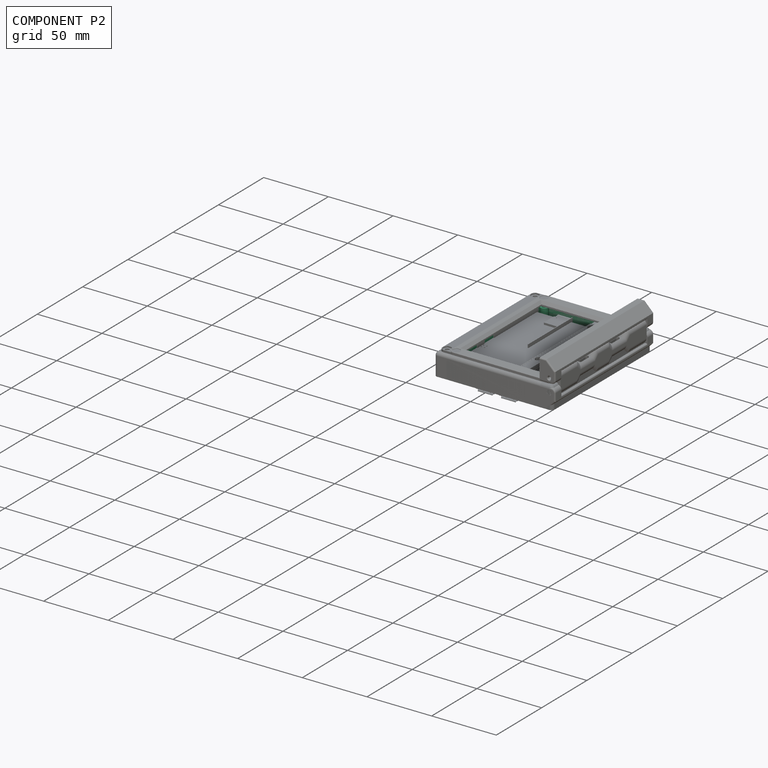
[diagram: component P2 — assembled]
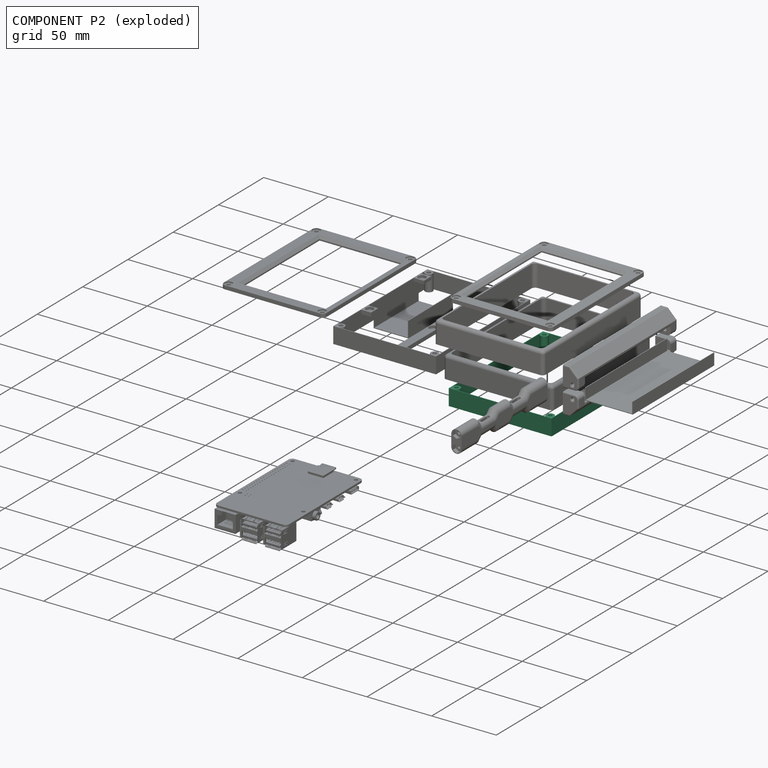
[diagram: component P2 — exploded]
COMPONENT P2 — recipe-attached ("epaper module tray001", modeled in this document).
Held by: resting contact with P0 (derived edge); resting contact with P1 (derived edge); resting contact with P4 (derived edge); resting contact with P6 (derived edge); resting contact with P7 (derived edge); resting contact with P9 (derived edge); resting contact with P10 (derived edge).
Construction recipe (the document's own serialized feature program — sketch geometry with constraints, then the solid features built on it; lengths are millimeters unless a unit is written):

FEATURE [Sketcher::SketchObject] Sketch040
  FullyConstrained = false
  MapMode = 5
  Support = -> [XY_Plane045]
  sketch-geometry (16):
    g0: LineSegment StartX=34 StartY=-45 StartZ=0 EndX=-38.5 EndY=-45 EndZ=0
    g1: LineSegment StartX=-41.5 StartY=-42 StartZ=0 EndX=-41.5 EndY=55 EndZ=0
    g2: LineSegment StartX=-38.5 StartY=58 StartZ=0 EndX=34 EndY=58 EndZ=0
    g3: LineSegment StartX=37 StartY=55 StartZ=0 EndX=37 EndY=-42 EndZ=0
    g4: LineSegment StartX=-42 StartY=58.5 StartZ=0 EndX=37.5 EndY=58.5 EndZ=0
    g5: LineSegment StartX=37.5 StartY=58.5 StartZ=0 EndX=37.5 EndY=-45.5 EndZ=0
    g6: LineSegment StartX=37.5 StartY=-45.5 StartZ=0 EndX=-42 EndY=-45.5 EndZ=0
    g7: LineSegment StartX=-42 StartY=-45.5 StartZ=0 EndX=-42 EndY=58.5 EndZ=0
    g8: Circle CenterX=-38.5 CenterY=55 CenterZ=0 NormalX=0 NormalY=0 NormalZ=1 AngleXU=0 Radius=1.5
    g9: Circle CenterX=34 CenterY=55 CenterZ=0 NormalX=0 NormalY=0 NormalZ=1 AngleXU=0 Radius=1.5
    g10: Circle CenterX=-38.5 CenterY=-42 CenterZ=0 NormalX=0 NormalY=0 NormalZ=1 AngleXU=0 Radius=1.5
    g11: Circle CenterX=34 CenterY=-42 CenterZ=0 NormalX=0 NormalY=0 NormalZ=1 AngleXU=0 Radius=1.5
    g12: ArcOfCircle CenterX=-38.5 CenterY=55 CenterZ=0 NormalX=0 NormalY=0 NormalZ=1 AngleXU=0 Radius=3 StartAngle=3.14159 EndAngle=7.85398
    g13: ArcOfCircle CenterX=34 CenterY=55 CenterZ=0 NormalX=0 NormalY=0 NormalZ=1 AngleXU=0 Radius=3 StartAngle=1.5708 EndAngle=6.28319
    g14: ArcOfCircle CenterX=34 CenterY=-42 CenterZ=0 NormalX=0 NormalY=0 NormalZ=1 AngleXU=0 Radius=3 StartAngle=0 EndAngle=4.71239
    g15: ArcOfCircle CenterX=-38.5 CenterY=-42 CenterZ=0 NormalX=0 NormalY=0 NormalZ=1 AngleXU=0 Radius=3 StartAngle=4.71239 EndAngle=9.42478
  constraints (32):
    c: Horizontal(g0)
    c: Horizontal(g2)
    c: Vertical(g1)
    c: Vertical(g3)
    c: Coincident(g4,g5)
    c: Coincident(g5,g6)
    c: Coincident(g6,g7)
    c: Coincident(g7,g4)
    c: Horizontal(g4)
    c: Horizontal(g6)
    c: Vertical(g5)
    c: Vertical(g7)
    c: Equal(g10,g11)
    c: Equal(g10,g8)
    c: Equal(g10,g9)
    c: Diameter(g10) = 3
    c: Coincident(g12,g8)
    c: Coincident(g13,g9)
    c: Coincident(g14,g11)
    c: Coincident(g15,g10)
    c: Equal(g12,g13)
    c: Equal(g12,g14)
    c: Equal(g12,g15)
    c: Diameter(g12) = 6
    c: Coincident(g13,g3)
    c: Coincident(g13,g2)
    c: Coincident(g12,g2)
    c: Coincident(g12,g1)
    c: Coincident(g1,g15)
    c: Coincident(g0,g15)
    c: Coincident(g14,g0)
    c: Coincident(g14,g3)
FEATURE [PartDesign::Pad] Pad009
  Direction = (0,0,1)
  Length = 12.5
  Length2 = 10
  Profile = -> Sketch040
  ReferenceAxis = -> Sketch040 [N_Axis]
  Reversed = true
  Type = 0
FEATURE [Sketcher::SketchObject] Sketch042
  FullyConstrained = true
  MapMode = 5
  Support = -> [XY_Plane045]
FEATURE [PartDesign::Body] Body007  label="Body014"
  Group = -> [Sketch040,Pad009,Sketch042]
  Origin = -> Origin045
  Tip = -> Pad009
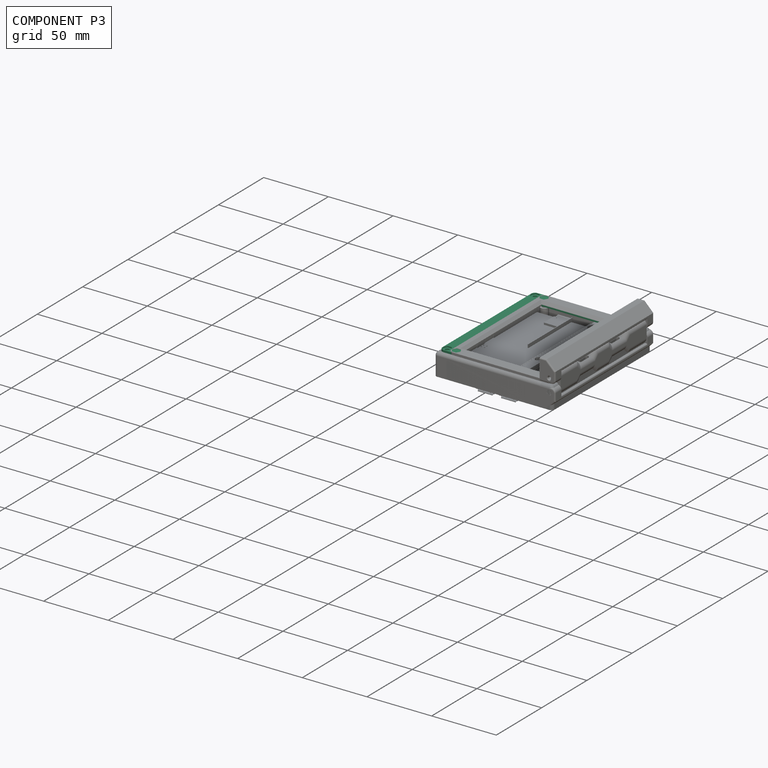
[diagram: component P3 — assembled]
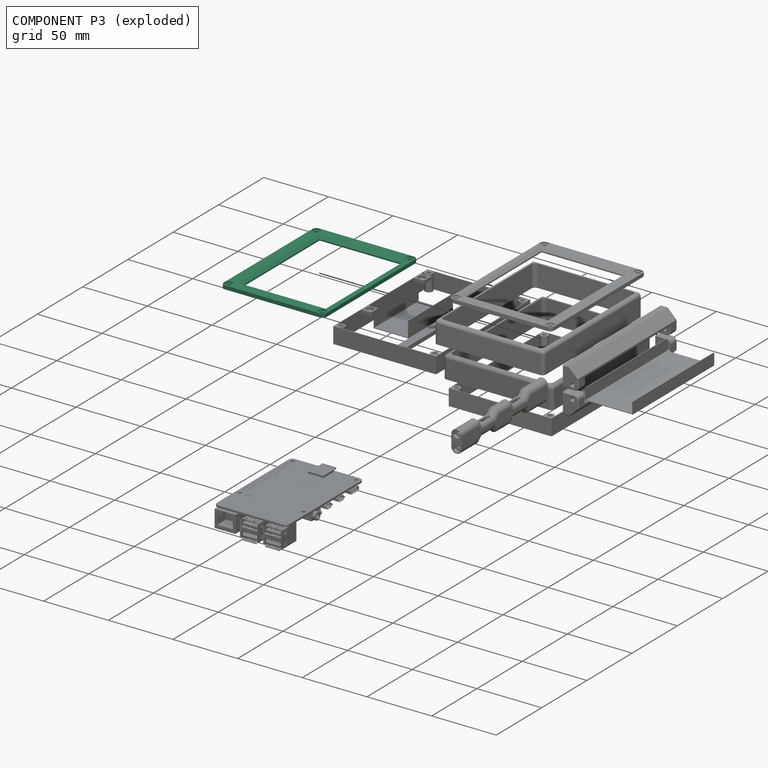
[diagram: component P3 — exploded]
COMPONENT P3 — recipe-attached ("epaper module cover", modeled in this document).
Held by: resting contact with P4 (derived edge); resting contact with P8 (derived edge); resting contact with P9 (derived edge); resting contact with P10 (derived edge).
Construction recipe (the document's own serialized feature program — sketch geometry with constraints, then the solid features built on it; lengths are millimeters unless a unit is written):

FEATURE [PartDesign::Body] Body003  label="nuts"
  Origin = -> Origin007
FEATURE [Sketcher::SketchObject] Sketch008
  AttachmentOffset = pos=(0,0,2) rot=(0,0,1;0rad)
  FullyConstrained = false
  MapMode = 5
  Placement = pos=(0,0,2) rot=(0,0,1;0rad)
  Support = -> [XY_Plane008]
  sketch-geometry (7):
    g0: LineSegment StartX=-35.284 StartY=54.9433 StartZ=0 EndX=-36.909 EndY=57.7579 EndZ=0
    g1: LineSegment StartX=-36.909 StartY=57.7579 StartZ=0 EndX=-40.159 EndY=57.7579 EndZ=0
    g2: LineSegment StartX=-40.159 StartY=57.7579 StartZ=0 EndX=-41.784 EndY=54.9433 EndZ=0
    g3: LineSegment StartX=-41.784 StartY=54.9433 StartZ=0 EndX=-40.159 EndY=52.1287 EndZ=0
    g4: LineSegment StartX=-40.159 StartY=52.1287 StartZ=0 EndX=-36.909 EndY=52.1287 EndZ=0
    g5: LineSegment StartX=-36.909 StartY=52.1287 StartZ=0 EndX=-35.284 EndY=54.9433 EndZ=0
    g6: Circle CenterX=-38.534 CenterY=54.9433 CenterZ=0 NormalX=0 NormalY=0 NormalZ=1 AngleXU=0 Radius=3.25
  constraints (14):
    c: Coincident(g0,g1)
    c: Coincident(g1,g2)
    c: Coincident(g2,g3)
    c: Coincident(g3,g4)
    c: Coincident(g4,g5)
    c: Coincident(g5,g0)
    c: Equal(g0, g1-g5) x5
    c: PointOnObject(g0,g6)
    c: PointOnObject(g1,g6)
    c: PointOnObject(g2,g6)
    c: PointOnObject(g3,g6)
    c: PointOnObject(g4,g6)
    c: PointOnObject(g5,g6)
    c: Horizontal(g1)
FEATURE [Sketcher::SketchObject] Sketch009
  FullyConstrained = false
  MapMode = 5
  Support = -> [XY_Plane008]
  sketch-geometry (8):
    g0: LineSegment StartX=-42 StartY=58.5 StartZ=0 EndX=37.5 EndY=58.5 EndZ=0
    g1: LineSegment StartX=37.5 StartY=58.5 StartZ=0 EndX=37.5 EndY=-45.5 EndZ=0
    g2: LineSegment StartX=37.5 StartY=-45.5 StartZ=0 EndX=-42 EndY=-45.5 EndZ=0
    g3: LineSegment StartX=-42 StartY=-45.5 StartZ=0 EndX=-42 EndY=58.5 EndZ=0
    g4: LineSegment StartX=-31.8439 StartY=48.8107 StartZ=0 EndX=31.7561 EndY=48.8107 EndZ=0
    g5: LineSegment StartX=31.7561 StartY=48.8107 StartZ=0 EndX=31.7561 EndY=-35.9893 EndZ=0
    g6: LineSegment StartX=31.7561 StartY=-35.9893 StartZ=0 EndX=-31.8439 EndY=-35.9893 EndZ=0
    g7: LineSegment StartX=-31.8439 StartY=-35.9893 StartZ=0 EndX=-31.8439 EndY=48.8107 EndZ=0
  constraints (22):
    c: Coincident(g0,g1)
    c: Coincident(g1,g2)
    c: Coincident(g2,g3)
    c: Coincident(g3,g0)
    c: Horizontal(g0)
    c: Horizontal(g2)
    c: Vertical(g1)
    c: Vertical(g3)
    c: Coincident(g4,g5)
    c: Coincident(g5,g6)
    c: Coincident(g6,g7)
    c: Coincident(g7,g4)
    c: Horizontal(g4)
    c: Horizontal(g6)
    c: Vertical(g5)
    c: Vertical(g7)
    c: DistanceX(g4,g4) = 63.6
    c: DistanceY(g7,g7) = 84.8
    c: DistanceX(g0,g0) = 79.5
    c: DistanceY(g3,g3) = 104
    c: DistanceY(g1,g-1) = 45.5
    c: DistanceX(g-1,g1) = 37.5
FEATURE [PartDesign::Pad] Pad005
  Direction = (0,0,1)
  Length = 3
  Length2 = 10
  Profile = -> Sketch009
  ReferenceAxis = -> Sketch009 [N_Axis]
  Type = 0
FEATURE [PartDesign::Pocket] Pocket009
  BaseFeature = -> Pad005
  Direction = (0,0,-1)
  Length = 2
  Length2 = 5
  Profile = -> Sketch008
  ReferenceAxis = -> Sketch008 [N_Axis]
  Reversed = true
  Type = 0
FEATURE [Sketcher::SketchObject] Sketch010
  AttachmentOffset = pos=(0,0,2) rot=(0,0,1;0rad)
  FullyConstrained = false
  MapMode = 5
  Placement = pos=(0,0,2) rot=(0,0,1;0rad)
  Support = -> [XY_Plane008]
  sketch-geometry (7):
    g0: LineSegment StartX=-35.284 StartY=-42.0567 StartZ=0 EndX=-36.909 EndY=-39.2421 EndZ=0
    g1: LineSegment StartX=-36.909 StartY=-39.2421 StartZ=0 EndX=-40.159 EndY=-39.2421 EndZ=0
    g2: LineSegment StartX=-40.159 StartY=-39.2421 StartZ=0 EndX=-41.784 EndY=-42.0567 EndZ=0
    g3: LineSegment StartX=-41.784 StartY=-42.0567 StartZ=0 EndX=-40.159 EndY=-44.8713 EndZ=0
    g4: LineSegment StartX=-40.159 StartY=-44.8713 StartZ=0 EndX=-36.909 EndY=-44.8713 EndZ=0
    g5: LineSegment StartX=-36.909 StartY=-44.8713 StartZ=0 EndX=-35.284 EndY=-42.0567 EndZ=0
    g6: Circle CenterX=-38.534 CenterY=-42.0567 CenterZ=0 NormalX=0 NormalY=0 NormalZ=1 AngleXU=0 Radius=3.25
  constraints (14):
    c: Coincident(g0,g1)
    c: Coincident(g1,g2)
    c: Coincident(g2,g3)
    c: Coincident(g3,g4)
    c: Coincident(g4,g5)
    c: Coincident(g5,g0)
    c: Equal(g0, g1-g5) x5
    c: PointOnObject(g0,g6)
    c: PointOnObject(g1,g6)
    c: PointOnObject(g2,g6)
    c: PointOnObject(g3,g6)
    c: PointOnObject(g4,g6)
    c: PointOnObject(g5,g6)
    c: Horizontal(g1)
FEATURE [Sketcher::SketchObject] Sketch011
  AttachmentOffset = pos=(0,0,2) rot=(0,0,1;0rad)
  FullyConstrained = false
  MapMode = 5
  Placement = pos=(0,0,2) rot=(0,0,1;0rad)
  Support = -> [XY_Plane008]
  sketch-geometry (7):
    g0: LineSegment StartX=30.716 StartY=-42.0567 StartZ=0 EndX=32.341 EndY=-44.8713 EndZ=0
    g1: LineSegment StartX=32.341 StartY=-44.8713 StartZ=0 EndX=35.591 EndY=-44.8713 EndZ=0
    g2: LineSegment StartX=35.591 StartY=-44.8713 StartZ=0 EndX=37.216 EndY=-42.0567 EndZ=0
    g3: LineSegment StartX=37.216 StartY=-42.0567 StartZ=0 EndX=35.591 EndY=-39.2421 EndZ=0
    g4: LineSegment StartX=35.591 StartY=-39.2421 StartZ=0 EndX=32.341 EndY=-39.2421 EndZ=0
    g5: LineSegment StartX=32.341 StartY=-39.2421 StartZ=0 EndX=30.716 EndY=-42.0567 EndZ=0
    g6: Circle CenterX=33.966 CenterY=-42.0567 CenterZ=0 NormalX=0 NormalY=0 NormalZ=1 AngleXU=0 Radius=3.25
  constraints (15):
    c: Coincident(g0,g1)
    c: Coincident(g1,g2)
    c: Coincident(g2,g3)
    c: Coincident(g3,g4)
    c: Coincident(g4,g5)
    c: Coincident(g5,g0)
    c: Equal(g0, g1-g5) x5
    c: PointOnObject(g0,g6)
    c: PointOnObject(g1,g6)
    c: PointOnObject(g2,g6)
    c: PointOnObject(g3,g6)
    c: PointOnObject(g4,g6)
    c: PointOnObject(g5,g6)
    c: Horizontal(g4)
    c: Diameter(g6) = 6.5
FEATURE [PartDesign::Pocket] Pocket010
  BaseFeature = -> Pocket009
  Direction = (0,0,-1)
  Length = 2
  Length2 = 5
  Profile = -> Sketch011
  ReferenceAxis = -> Sketch011 [N_Axis]
  Reversed = true
  Type = 0
FEATURE [Sketcher::SketchObject] Sketch012
  AttachmentOffset = pos=(0,0,2) rot=(0,0,1;0rad)
  FullyConstrained = false
  MapMode = 5
  Placement = pos=(0,0,2) rot=(0,0,1;0rad)
  Support = -> [XY_Plane008]
  sketch-geometry (7):
    g0: LineSegment StartX=32.341 StartY=52.1287 StartZ=0 EndX=35.591 EndY=52.1287 EndZ=0
    g1: LineSegment StartX=35.591 StartY=52.1287 StartZ=0 EndX=37.216 EndY=54.9433 EndZ=0
    g2: LineSegment StartX=37.216 StartY=54.9433 StartZ=0 EndX=35.591 EndY=57.7579 EndZ=0
    g3: LineSegment StartX=35.591 StartY=57.7579 StartZ=0 EndX=32.341 EndY=57.7579 EndZ=0
    g4: LineSegment StartX=32.341 StartY=57.7579 StartZ=0 EndX=30.716 EndY=54.9433 EndZ=0
    g5: LineSegment StartX=30.716 StartY=54.9433 StartZ=0 EndX=32.341 EndY=52.1287 EndZ=0
    g6: Circle CenterX=33.966 CenterY=54.9433 CenterZ=0 NormalX=0 NormalY=0 NormalZ=1 AngleXU=0 Radius=3.25
  constraints (14):
    c: Coincident(g0,g1)
    c: Coincident(g1,g2)
    c: Coincident(g2,g3)
    c: Coincident(g3,g4)
    c: Coincident(g4,g5)
    c: Coincident(g5,g0)
    c: Equal(g0, g1-g5) x5
    c: PointOnObject(g0,g6)
    c: PointOnObject(g1,g6)
    c: PointOnObject(g2,g6)
    c: PointOnObject(g3,g6)
    c: PointOnObject(g4,g6)
    c: PointOnObject(g5,g6)
    c: Horizontal(g0)
FEATURE [PartDesign::Pocket] Pocket011
  BaseFeature = -> Pocket010
  Direction = (0,0,-1)
  Length = 2
  Length2 = 5
  Profile = -> Sketch012
  ReferenceAxis = -> Sketch012 [N_Axis]
  Reversed = true
  Type = 0
FEATURE [PartDesign::Pocket] Pocket012
  BaseFeature = -> Pocket011
  Direction = (0,0,-1)
  Length = 2
  Length2 = 5
  Profile = -> Sketch010
  ReferenceAxis = -> Sketch010 [N_Axis]
  Reversed = true
  Type = 0
FEATURE [Sketcher::SketchObject] Sketch013
  FullyConstrained = false
  MapMode = 5
  Support = -> [XY_Plane008]
  sketch-geometry (4):
    g0: Circle CenterX=-38.5151 CenterY=-42.0925 CenterZ=0 NormalX=0 NormalY=0 NormalZ=1 AngleXU=0 Radius=1.5
    g1: Circle CenterX=34.0278 CenterY=-42.0925 CenterZ=0 NormalX=0 NormalY=0 NormalZ=1 AngleXU=0 Radius=1.5
    g2: Circle CenterX=34.0278 CenterY=54.9676 CenterZ=0 NormalX=0 NormalY=0 NormalZ=1 AngleXU=0 Radius=1.5
    g3: Circle CenterX=-38.5151 CenterY=54.9676 CenterZ=0 NormalX=0 NormalY=0 NormalZ=1 AngleXU=0 Radius=1.5
  constraints (8):
    c: Equal(g3,g2)
    c: Equal(g3,g1)
    c: Equal(g3,g0)
    c: Diameter(g3) = 3
    c: Horizontal(g0,g1)
    c: Horizontal(g3,g2)
    c: Vertical(g3,g0)
    c: Vertical(g1,g2)
FEATURE [PartDesign::Pocket] Pocket013
  BaseFeature = -> Pocket012
  Direction = (0,0,-1)
  Length = 5
  Length2 = 5
  Midplane = true
  Profile = -> Sketch013
  ReferenceAxis = -> Sketch013 [N_Axis]
  Type = 1
FEATURE [PartDesign::Fillet] Fillet003
  Base = -> Pocket013 [Edge1,Edge5,Edge8,Edge2]
  BaseFeature = -> Pocket013
  Radius = 3
  SupportTransform = false
  UseAllEdges = false
FEATURE [PartDesign::Chamfer] Chamfer
  Angle = 45
  Base = -> Fillet003 [Edge44,Edge43,Edge42,Edge41]
  BaseFeature = -> Fillet003
  ChamferType = 0
  FlipDirection = false
  Size = 2
  Size2 = 1
  SupportTransform = false
  UseAllEdges = false
FEATURE [PartDesign::Chamfer] Chamfer009
  Angle = 45
  Base = -> Chamfer [Edge12,Edge10,Edge8,Edge11,Edge9,Edge7,Edge5,Edge6]
  BaseFeature = -> Chamfer
  ChamferType = 0
  FlipDirection = false
  Size = 0.2
  Size2 = 1
  SupportTransform = false
  UseAllEdges = false
FEATURE [PartDesign::Body] Body004  label="Body010"
  Group = -> [Sketch009,Pad005,Sketch008,Sketch012,Sketch010,Sketch011,Pocket009,Pocket010,Pocket011,Pocket012,Sketch013,Pocket013,Fillet003,Chamfer,Chamfer009]
  Origin = -> Origin008
  Tip = -> Chamfer009
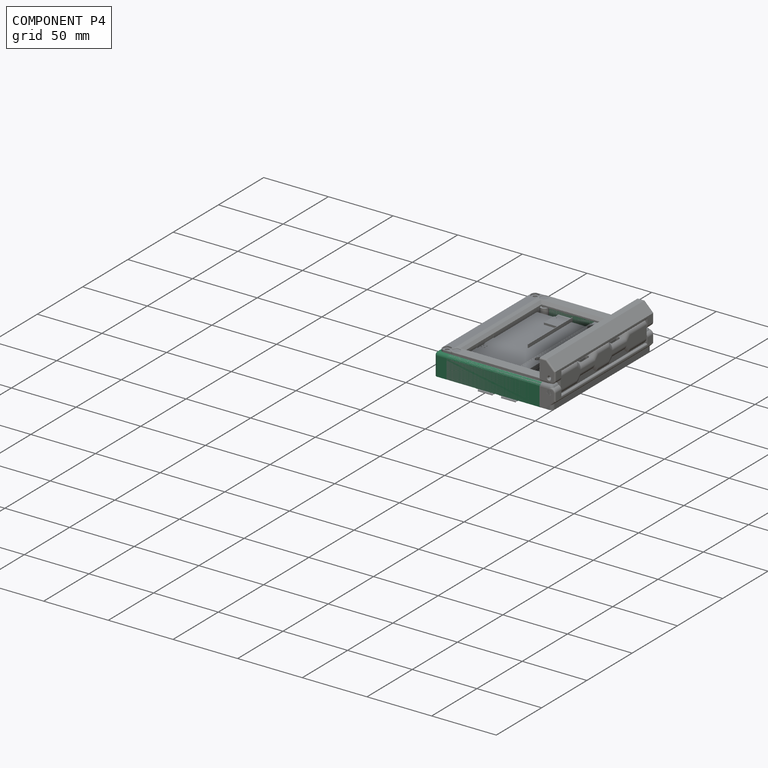
[diagram: component P4 — assembled]
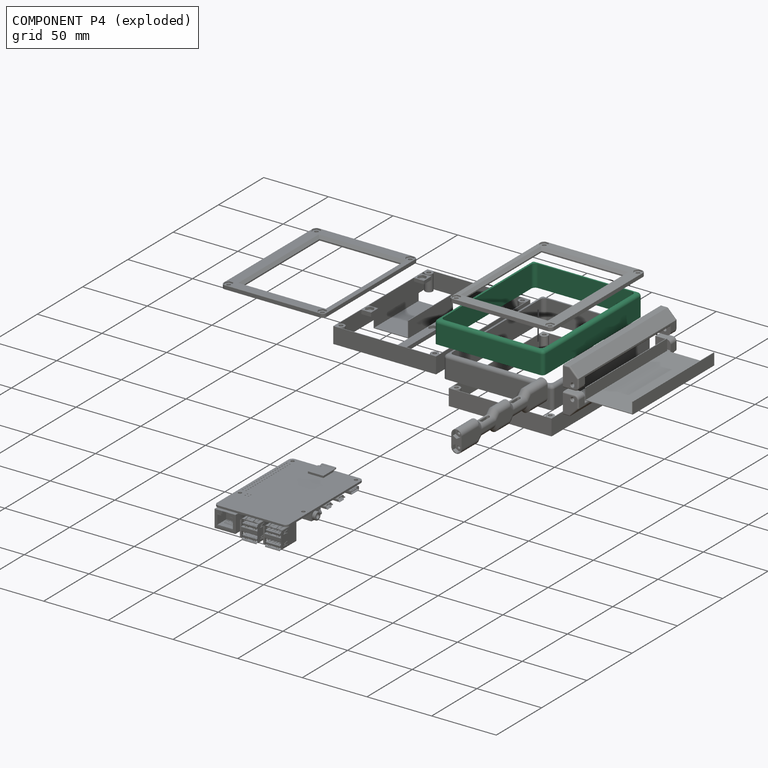
[diagram: component P4 — exploded]
COMPONENT P4 — recipe-attached ("outer-shell", modeled in this document).
Held by: resting contact with P1 (derived edge); resting contact with P2 (derived edge); resting contact with P3 (derived edge); resting contact with P8 (derived edge); resting contact with P9 (derived edge); resting contact with P10 (derived edge).
Construction recipe (the document's own serialized feature program — sketch geometry with constraints, then the solid features built on it; lengths are millimeters unless a unit is written):

FEATURE [Sketcher::SketchObject] Sketch014
  FullyConstrained = true
  MapMode = 5
  Support = -> [XY_Plane010]
  sketch-geometry (8):
    g0: LineSegment StartX=-34.5 StartY=58 StartZ=0 EndX=44 EndY=58 EndZ=0
    g1: LineSegment StartX=44 StartY=58 StartZ=0 EndX=44 EndY=-45 EndZ=0
    g2: LineSegment StartX=44 StartY=-45 StartZ=0 EndX=-34.5 EndY=-45 EndZ=0
    g3: LineSegment StartX=-34.5 StartY=-45 StartZ=0 EndX=-34.5 EndY=58 EndZ=0
    g4: LineSegment StartX=-37.5 StartY=61 StartZ=0 EndX=47 EndY=61 EndZ=0
    g5: LineSegment StartX=47 StartY=61 StartZ=0 EndX=47 EndY=-48 EndZ=0
    g6: LineSegment StartX=47 StartY=-48 StartZ=0 EndX=-37.5 EndY=-48 EndZ=0
    g7: LineSegment StartX=-37.5 StartY=-48 StartZ=0 EndX=-37.5 EndY=61 EndZ=0
  constraints (24):
    c: Coincident(g0,g1)
    c: Coincident(g1,g2)
    c: Coincident(g2,g3)
    c: Coincident(g3,g0)
    c: Horizontal(g0)
    c: Horizontal(g2)
    c: Vertical(g1)
    c: Vertical(g3)
    c: Coincident(g4,g5)
    c: Coincident(g5,g6)
    c: Coincident(g6,g7)
    c: Coincident(g7,g4)
    c: Horizontal(g4)
    c: Horizontal(g6)
    c: Vertical(g5)
    c: Vertical(g7)
    c: DistanceX(g0,g0) = 78.5
    c: DistanceY(g3,g3) = 103
    c: DistanceY(g1,g-1) = 45
    c: DistanceX(g-1,g1) = 44
    c: DistanceY(g0,g4) = 3
    c: DistanceX(g4,g0) = 3
    c: DistanceX(g0,g4) = 3
    c: DistanceY(g5,g1) = 3
FEATURE [PartDesign::Pad] Pad006
  Direction = (0,0,1)
  Length = 17
  Length2 = 10
  Profile = -> Sketch014
  ReferenceAxis = -> Sketch014 [N_Axis]
  Reversed = true
  Type = 0
FEATURE [PartDesign::Fillet] Fillet002
  Base = -> Pad006 [Edge13,Edge20,Edge14,Edge17]
  BaseFeature = -> Pad006
  Radius = 3
  SupportTransform = false
  UseAllEdges = false
FEATURE [PartDesign::Fillet] Fillet004
  Base = -> Fillet002 [Edge34,Edge33,Edge35,Edge36,Edge15,Edge14,Edge13,Edge12]
  BaseFeature = -> Fillet002
  Radius = 2.5
  SupportTransform = false
  UseAllEdges = false
FEATURE [PartDesign::Body] Body005  label="Body011"
  Group = -> [Sketch014,Pad006,Fillet002,Fillet004]
  Origin = -> Origin010
  Placement = pos=(0,0,4.5) rot=(0,0,1;0rad)
  Tip = -> Fillet004
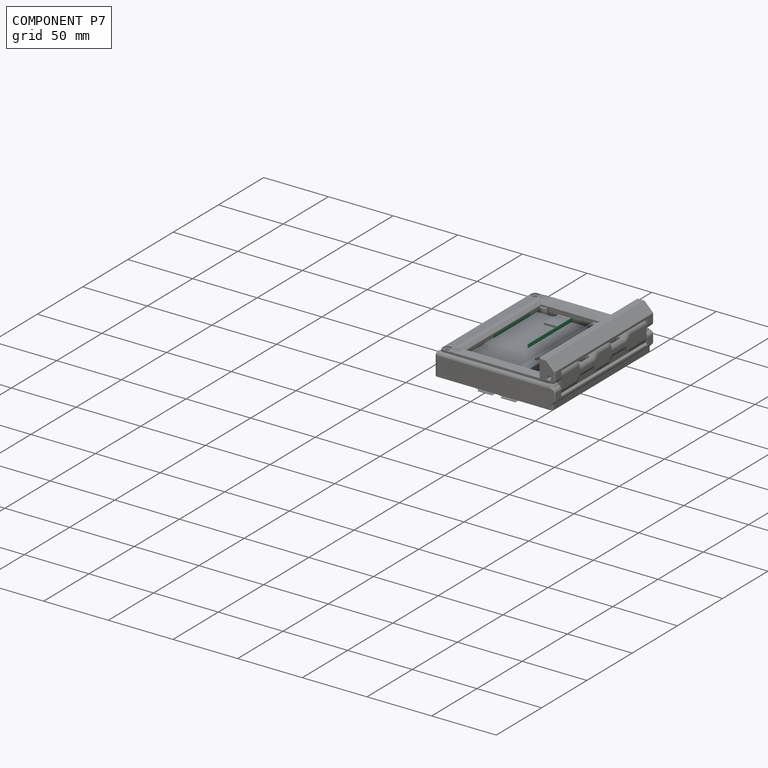
[diagram: component P7 — assembled]
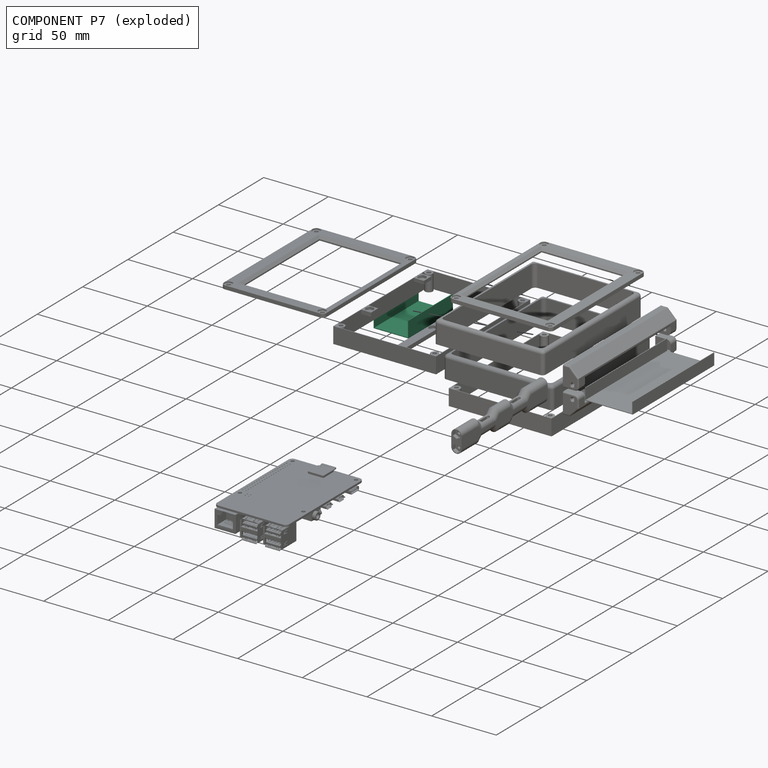
[diagram: component P7 — exploded]
COMPONENT P7 — recipe-attached ("Stepdown module tray", modeled in this document).
Held by: resting contact with P1 (derived edge); resting contact with P2 (derived edge); resting contact with P5 (derived edge); resting contact with P9 (derived edge).
Construction recipe (the document's own serialized feature program — sketch geometry with constraints, then the solid features built on it; lengths are millimeters unless a unit is written):

FEATURE [Sketcher::SketchObject] Sketch039
  FullyConstrained = true
  MapMode = 5
  Placement = pos=(0,0,0) rot=(1,0,0;1.5708rad)
  Support = -> [XZ_Plane003]
  sketch-geometry (8):
    g0: LineSegment StartX=-26.5 StartY=-3e-16 StartZ=0 EndX=-26.5 EndY=-12 EndZ=0
    g1: LineSegment StartX=-26.5 StartY=-12 StartZ=0 EndX=-0.5 EndY=-12 EndZ=0
    g2: LineSegment StartX=-0.5 StartY=-12 StartZ=0 EndX=-0.5 EndY=0 EndZ=0
    g3: LineSegment StartX=-26.5 StartY=-3e-16 StartZ=0 EndX=-27 EndY=-3e-16 EndZ=0
    g4: LineSegment StartX=-27 StartY=-3e-16 StartZ=0 EndX=-27 EndY=-12.5 EndZ=0
    g5: LineSegment StartX=-27 StartY=-12.5 StartZ=0 EndX=0 EndY=-12.5 EndZ=0
    g6: LineSegment StartX=0 StartY=-12.5 StartZ=0 EndX=0 EndY=0 EndZ=0
    g7: LineSegment StartX=0 StartY=0 StartZ=0 EndX=-0.5 EndY=0 EndZ=0
  constraints (23):
    c: Coincident(g0,g1)
    c: Coincident(g1,g2)
    c: Horizontal(g1)
    c: Vertical(g0)
    c: Vertical(g2)
    c: DistanceY(g2,g2) = 12
    c: DistanceX(g1,g1) = 26
    c: Equal(g0,g2)
    c: Coincident(g0,g3)
    c: Horizontal(g3)
    c: Coincident(g3,g4)
    c: Vertical(g4)
    c: Coincident(g4,g5)
    c: Horizontal(g5)
    c: Coincident(g5,g6)
    c: Vertical(g6)
    c: Coincident(g6,g7)
    c: Coincident(g7,g2)
    c: Horizontal(g7)
    c: DistanceX(g3,g3) = 0.5
    c: DistanceY(g4,g0) = 0.5
    c: Equal(g7,g3)
    c: Coincident(g6,g-1)
FEATURE [PartDesign::Pad] Pad008
  Direction = (0,-1,2e-16)
  Length = 49
  Length2 = 10
  Placement = pos=(0,0,0) rot=(1,0,0;1.5708rad)
  Profile = -> Sketch039
  ReferenceAxis = -> Sketch039 [N_Axis]
  Reversed = true
  Type = 0
FEATURE [PartDesign::Body] Body001  label="Body013"
  Group = -> [Sketch039,Pad008]
  Origin = -> Origin003
  Tip = -> Pad008
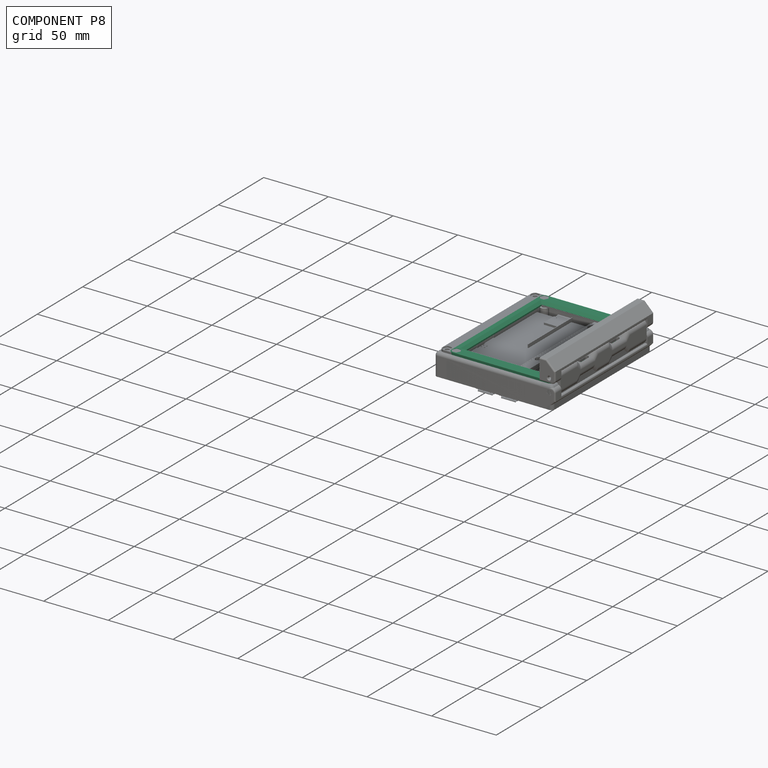
[diagram: component P8 — assembled]
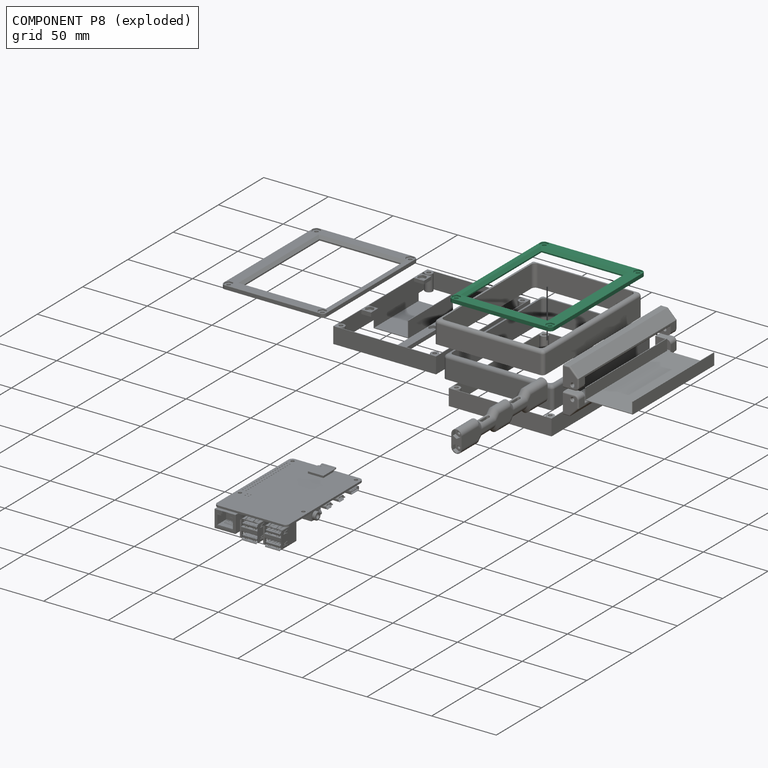
[diagram: component P8 — exploded]
COMPONENT P8 — recipe-attached ("epaper module cover001", modeled in this document).
Held by: resting contact with P0 (derived edge); resting contact with P3 (derived edge); resting contact with P4 (derived edge); resting contact with P9 (derived edge); resting contact with P10 (derived edge).
Construction recipe (the document's own serialized feature program — sketch geometry with constraints, then the solid features built on it; lengths are millimeters unless a unit is written):

FEATURE [PartDesign::Body] Body008  label="nuts001"
  Origin = -> Origin047
FEATURE [Sketcher::SketchObject] Sketch041
  AttachmentOffset = pos=(0,0,2) rot=(0,0,1;0rad)
  FullyConstrained = false
  MapMode = 5
  Placement = pos=(0,0,2) rot=(0,0,1;0rad)
  Support = -> [XY_Plane048]
  sketch-geometry (7):
    g0: LineSegment StartX=-35.284 StartY=54.9433 StartZ=0 EndX=-36.909 EndY=57.7579 EndZ=0
    g1: LineSegment StartX=-36.909 StartY=57.7579 StartZ=0 EndX=-40.159 EndY=57.7579 EndZ=0
    g2: LineSegment StartX=-40.159 StartY=57.7579 StartZ=0 EndX=-41.784 EndY=54.9433 EndZ=0
    g3: LineSegment StartX=-41.784 StartY=54.9433 StartZ=0 EndX=-40.159 EndY=52.1287 EndZ=0
    g4: LineSegment StartX=-40.159 StartY=52.1287 StartZ=0 EndX=-36.909 EndY=52.1287 EndZ=0
    g5: LineSegment StartX=-36.909 StartY=52.1287 StartZ=0 EndX=-35.284 EndY=54.9433 EndZ=0
    g6: Circle CenterX=-38.534 CenterY=54.9433 CenterZ=0 NormalX=0 NormalY=0 NormalZ=1 AngleXU=0 Radius=3.25
  constraints (14):
    c: Coincident(g0,g1)
    c: Coincident(g1,g2)
    c: Coincident(g2,g3)
    c: Coincident(g3,g4)
    c: Coincident(g4,g5)
    c: Coincident(g5,g0)
    c: Equal(g0, g1-g5) x5
    c: PointOnObject(g0,g6)
    c: PointOnObject(g1,g6)
    c: PointOnObject(g2,g6)
    c: PointOnObject(g3,g6)
    c: PointOnObject(g4,g6)
    c: PointOnObject(g5,g6)
    c: Horizontal(g1)
FEATURE [Sketcher::SketchObject] Sketch043
  FullyConstrained = false
  MapMode = 5
  Support = -> [XY_Plane048]
  sketch-geometry (8):
    g0: LineSegment StartX=-42 StartY=58.5 StartZ=0 EndX=37.5 EndY=58.5 EndZ=0
    g1: LineSegment StartX=37.5 StartY=58.5 StartZ=0 EndX=37.5 EndY=-45.5 EndZ=0
    g2: LineSegment StartX=37.5 StartY=-45.5 StartZ=0 EndX=-42 EndY=-45.5 EndZ=0
    g3: LineSegment StartX=-42 StartY=-45.5 StartZ=0 EndX=-42 EndY=58.5 EndZ=0
    g4: LineSegment StartX=-31.8439 StartY=48.8107 StartZ=0 EndX=31.7561 EndY=48.8107 EndZ=0
    g5: LineSegment StartX=31.7561 StartY=48.8107 StartZ=0 EndX=31.7561 EndY=-35.9893 EndZ=0
    g6: LineSegment StartX=31.7561 StartY=-35.9893 StartZ=0 EndX=-31.8439 EndY=-35.9893 EndZ=0
    g7: LineSegment StartX=-31.8439 StartY=-35.9893 StartZ=0 EndX=-31.8439 EndY=48.8107 EndZ=0
  constraints (22):
    c: Coincident(g0,g1)
    c: Coincident(g1,g2)
    c: Coincident(g2,g3)
    c: Coincident(g3,g0)
    c: Horizontal(g0)
    c: Horizontal(g2)
    c: Vertical(g1)
    c: Vertical(g3)
    c: Coincident(g4,g5)
    c: Coincident(g5,g6)
    c: Coincident(g6,g7)
    c: Coincident(g7,g4)
    c: Horizontal(g4)
    c: Horizontal(g6)
    c: Vertical(g5)
    c: Vertical(g7)
    c: DistanceX(g4,g4) = 63.6
    c: DistanceY(g7,g7) = 84.8
    c: DistanceX(g0,g0) = 79.5
    c: DistanceY(g3,g3) = 104
    c: DistanceY(g1,g-1) = 45.5
    c: DistanceX(g-1,g1) = 37.5
FEATURE [PartDesign::Pad] Pad010
  Direction = (0,0,1)
  Length = 3
  Length2 = 10
  Profile = -> Sketch043
  ReferenceAxis = -> Sketch043 [N_Axis]
  Type = 0
FEATURE [PartDesign::Pocket] Pocket014
  BaseFeature = -> Pad010
  Direction = (0,0,-1)
  Length = 2
  Length2 = 5
  Profile = -> Sketch041
  ReferenceAxis = -> Sketch041 [N_Axis]
  Reversed = true
  Type = 0
FEATURE [Sketcher::SketchObject] Sketch044
  AttachmentOffset = pos=(0,0,2) rot=(0,0,1;0rad)
  FullyConstrained = false
  MapMode = 5
  Placement = pos=(0,0,2) rot=(0,0,1;0rad)
  Support = -> [XY_Plane048]
  sketch-geometry (7):
    g0: LineSegment StartX=-35.284 StartY=-42.0567 StartZ=0 EndX=-36.909 EndY=-39.2421 EndZ=0
    g1: LineSegment StartX=-36.909 StartY=-39.2421 StartZ=0 EndX=-40.159 EndY=-39.2421 EndZ=0
    g2: LineSegment StartX=-40.159 StartY=-39.2421 StartZ=0 EndX=-41.784 EndY=-42.0567 EndZ=0
    g3: LineSegment StartX=-41.784 StartY=-42.0567 StartZ=0 EndX=-40.159 EndY=-44.8713 EndZ=0
    g4: LineSegment StartX=-40.159 StartY=-44.8713 StartZ=0 EndX=-36.909 EndY=-44.8713 EndZ=0
    g5: LineSegment StartX=-36.909 StartY=-44.8713 StartZ=0 EndX=-35.284 EndY=-42.0567 EndZ=0
    g6: Circle CenterX=-38.534 CenterY=-42.0567 CenterZ=0 NormalX=0 NormalY=0 NormalZ=1 AngleXU=0 Radius=3.25
  constraints (14):
    c: Coincident(g0,g1)
    c: Coincident(g1,g2)
    c: Coincident(g2,g3)
    c: Coincident(g3,g4)
    c: Coincident(g4,g5)
    c: Coincident(g5,g0)
    c: Equal(g0, g1-g5) x5
    c: PointOnObject(g0,g6)
    c: PointOnObject(g1,g6)
    c: PointOnObject(g2,g6)
    c: PointOnObject(g3,g6)
    c: PointOnObject(g4,g6)
    c: PointOnObject(g5,g6)
    c: Horizontal(g1)
FEATURE [Sketcher::SketchObject] Sketch045
  AttachmentOffset = pos=(0,0,2) rot=(0,0,1;0rad)
  FullyConstrained = false
  MapMode = 5
  Placement = pos=(0,0,2) rot=(0,0,1;0rad)
  Support = -> [XY_Plane048]
  sketch-geometry (7):
    g0: LineSegment StartX=30.716 StartY=-42.0567 StartZ=0 EndX=32.341 EndY=-44.8713 EndZ=0
    g1: LineSegment StartX=32.341 StartY=-44.8713 StartZ=0 EndX=35.591 EndY=-44.8713 EndZ=0
    g2: LineSegment StartX=35.591 StartY=-44.8713 StartZ=0 EndX=37.216 EndY=-42.0567 EndZ=0
    g3: LineSegment StartX=37.216 StartY=-42.0567 StartZ=0 EndX=35.591 EndY=-39.2421 EndZ=0
    g4: LineSegment StartX=35.591 StartY=-39.2421 StartZ=0 EndX=32.341 EndY=-39.2421 EndZ=0
    g5: LineSegment StartX=32.341 StartY=-39.2421 StartZ=0 EndX=30.716 EndY=-42.0567 EndZ=0
    g6: Circle CenterX=33.966 CenterY=-42.0567 CenterZ=0 NormalX=0 NormalY=0 NormalZ=1 AngleXU=0 Radius=3.25
  constraints (15):
    c: Coincident(g0,g1)
    c: Coincident(g1,g2)
    c: Coincident(g2,g3)
    c: Coincident(g3,g4)
    c: Coincident(g4,g5)
    c: Coincident(g5,g0)
    c: Equal(g0, g1-g5) x5
    c: PointOnObject(g0,g6)
    c: PointOnObject(g1,g6)
    c: PointOnObject(g2,g6)
    c: PointOnObject(g3,g6)
    c: PointOnObject(g4,g6)
    c: PointOnObject(g5,g6)
    c: Horizontal(g4)
    c: Diameter(g6) = 6.5
FEATURE [PartDesign::Pocket] Pocket015
  BaseFeature = -> Pocket014
  Direction = (0,0,-1)
  Length = 2
  Length2 = 5
  Profile = -> Sketch045
  ReferenceAxis = -> Sketch045 [N_Axis]
  Reversed = true
  Type = 0
FEATURE [Sketcher::SketchObject] Sketch046
  AttachmentOffset = pos=(0,0,2) rot=(0,0,1;0rad)
  FullyConstrained = false
  MapMode = 5
  Placement = pos=(0,0,2) rot=(0,0,1;0rad)
  Support = -> [XY_Plane048]
  sketch-geometry (7):
    g0: LineSegment StartX=32.341 StartY=52.1287 StartZ=0 EndX=35.591 EndY=52.1287 EndZ=0
    g1: LineSegment StartX=35.591 StartY=52.1287 StartZ=0 EndX=37.216 EndY=54.9433 EndZ=0
    g2: LineSegment StartX=37.216 StartY=54.9433 StartZ=0 EndX=35.591 EndY=57.7579 EndZ=0
    g3: LineSegment StartX=35.591 StartY=57.7579 StartZ=0 EndX=32.341 EndY=57.7579 EndZ=0
    g4: LineSegment StartX=32.341 StartY=57.7579 StartZ=0 EndX=30.716 EndY=54.9433 EndZ=0
    g5: LineSegment StartX=30.716 StartY=54.9433 StartZ=0 EndX=32.341 EndY=52.1287 EndZ=0
    g6: Circle CenterX=33.966 CenterY=54.9433 CenterZ=0 NormalX=0 NormalY=0 NormalZ=1 AngleXU=0 Radius=3.25
  constraints (14):
    c: Coincident(g0,g1)
    c: Coincident(g1,g2)
    c: Coincident(g2,g3)
    c: Coincident(g3,g4)
    c: Coincident(g4,g5)
    c: Coincident(g5,g0)
    c: Equal(g0, g1-g5) x5
    c: PointOnObject(g0,g6)
    c: PointOnObject(g1,g6)
    c: PointOnObject(g2,g6)
    c: PointOnObject(g3,g6)
    c: PointOnObject(g4,g6)
    c: PointOnObject(g5,g6)
    c: Horizontal(g0)
FEATURE [PartDesign::Pocket] Pocket016
  BaseFeature = -> Pocket015
  Direction = (0,0,-1)
  Length = 2
  Length2 = 5
  Profile = -> Sketch046
  ReferenceAxis = -> Sketch046 [N_Axis]
  Reversed = true
  Type = 0
FEATURE [PartDesign::Pocket] Pocket017
  BaseFeature = -> Pocket016
  Direction = (0,0,-1)
  Length = 2
  Length2 = 5
  Profile = -> Sketch044
  ReferenceAxis = -> Sketch044 [N_Axis]
  Reversed = true
  Type = 0
FEATURE [Sketcher::SketchObject] Sketch047
  FullyConstrained = false
  MapMode = 5
  Support = -> [XY_Plane048]
  sketch-geometry (4):
    g0: Circle CenterX=-38.5151 CenterY=-42.0925 CenterZ=0 NormalX=0 NormalY=0 NormalZ=1 AngleXU=0 Radius=1.5
    g1: Circle CenterX=34.0278 CenterY=-42.0925 CenterZ=0 NormalX=0 NormalY=0 NormalZ=1 AngleXU=0 Radius=1.5
    g2: Circle CenterX=34.0278 CenterY=54.9676 CenterZ=0 NormalX=0 NormalY=0 NormalZ=1 AngleXU=0 Radius=1.5
    g3: Circle CenterX=-38.5151 CenterY=54.9676 CenterZ=0 NormalX=0 NormalY=0 NormalZ=1 AngleXU=0 Radius=1.5
  constraints (8):
    c: Equal(g3,g2)
    c: Equal(g3,g1)
    c: Equal(g3,g0)
    c: Diameter(g3) = 3
    c: Horizontal(g0,g1)
    c: Horizontal(g3,g2)
    c: Vertical(g3,g0)
    c: Vertical(g1,g2)
FEATURE [PartDesign::Pocket] Pocket018
  BaseFeature = -> Pocket017
  Direction = (0,0,-1)
  Length = 5
  Length2 = 5
  Midplane = true
  Profile = -> Sketch047
  ReferenceAxis = -> Sketch047 [N_Axis]
  Type = 1
FEATURE [PartDesign::Fillet] Fillet022  label="Fillet023"
  Base = -> Pocket018 [Edge1,Edge5,Edge8,Edge2]
  BaseFeature = -> Pocket018
  Radius = 3
  SupportTransform = false
  UseAllEdges = false
FEATURE [PartDesign::Chamfer] Chamfer010
  Angle = 45
  Base = -> Fillet022 [Edge44,Edge43,Edge42,Edge41]
  BaseFeature = -> Fillet022
  ChamferType = 0
  FlipDirection = false
  Size = 2
  Size2 = 1
  SupportTransform = false
  UseAllEdges = false
FEATURE [PartDesign::Chamfer] Chamfer001
  Angle = 45
  Base = -> Chamfer010 [Edge8,Edge5,Edge9,Edge12,Edge10,Edge7,Edge6,Edge11]
  BaseFeature = -> Chamfer010
  ChamferType = 0
  FlipDirection = false
  Size = 0.2
  Size2 = 1
  SupportTransform = false
  UseAllEdges = false
FEATURE [PartDesign::Body] Body009  label="Body015"
  Group = -> [Sketch043,Pad010,Sketch041,Sketch046,Sketch044,Sketch045,Pocket014,Pocket015,Pocket016,Pocket017,Sketch047,Pocket018,Fillet022,Chamfer010,Chamfer001]
  Origin = -> Origin048
  Tip = -> Chamfer001
